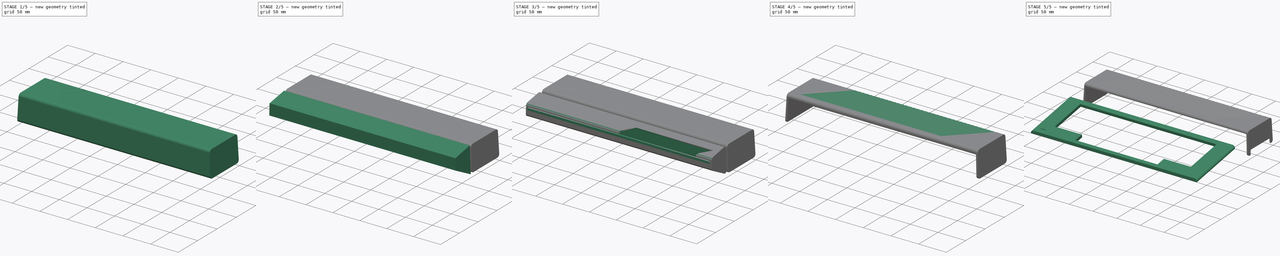
[diagram: build sequence overview — one tinted view per stage of 5, left to right]
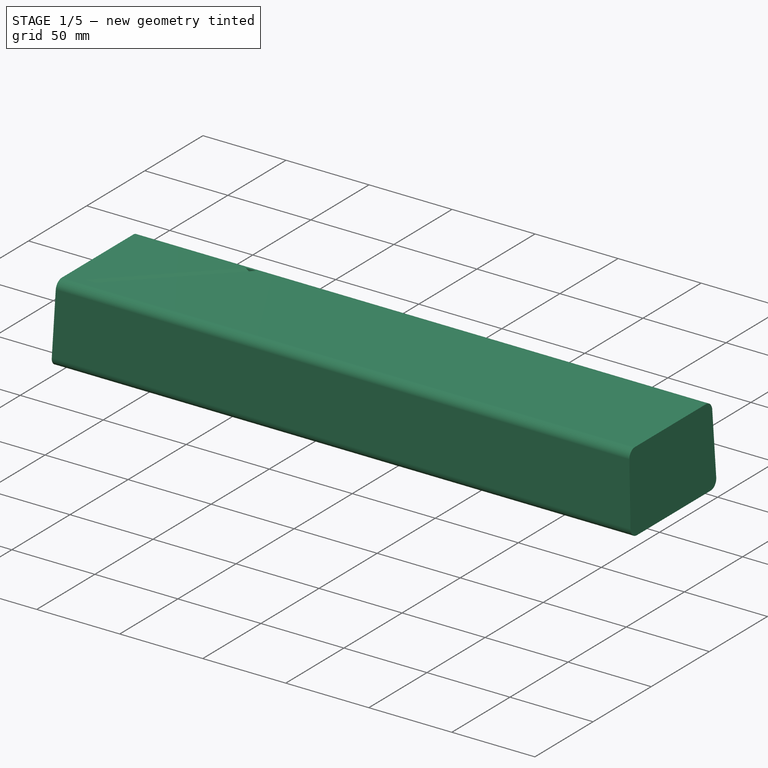
[diagram: stage 1 of 5 — iso view after this stage's code; geometry added in this stage tinted green]
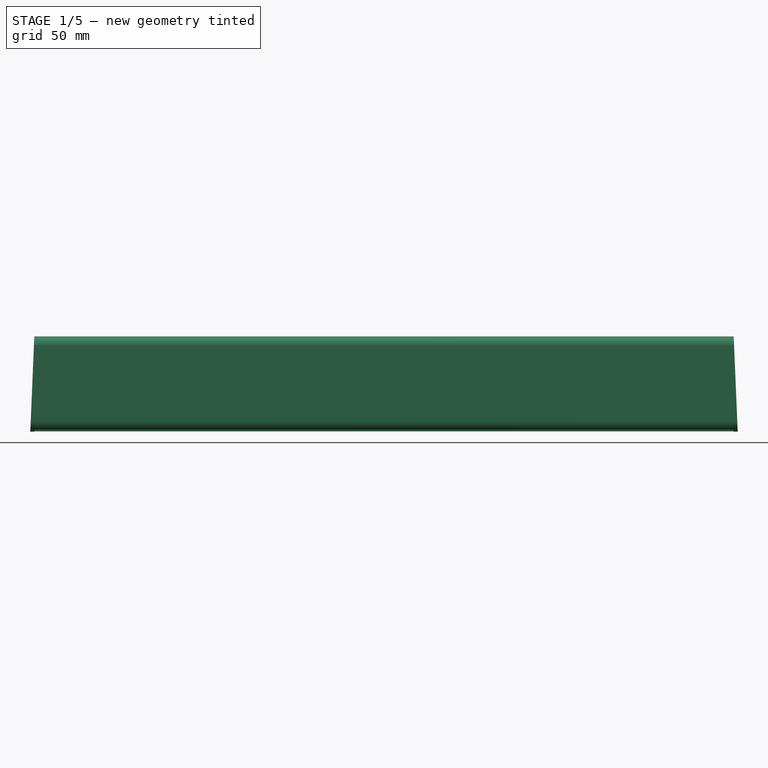
[diagram: stage 1 of 5 — front view after this stage's code; geometry added in this stage tinted green]
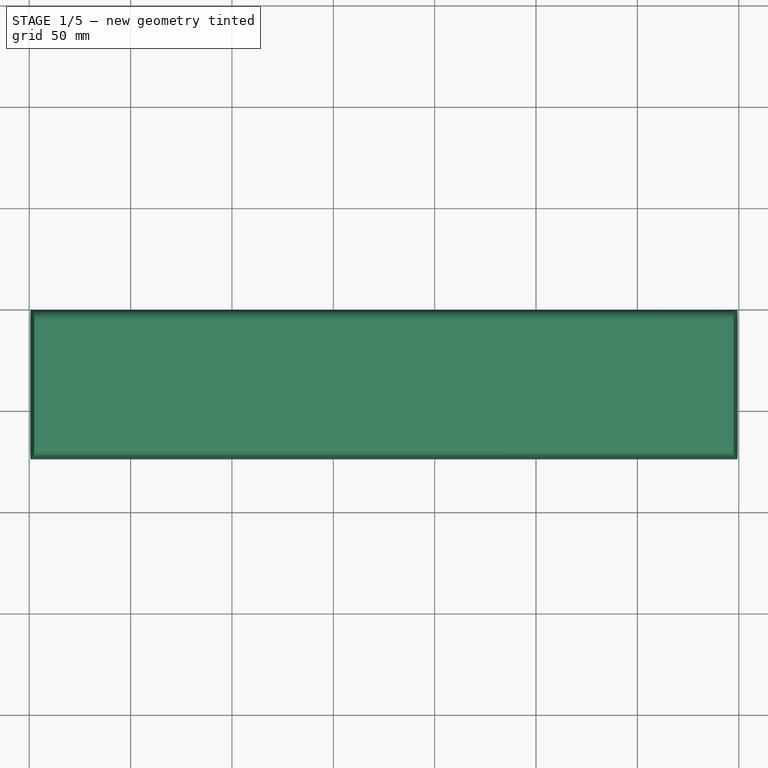
[diagram: stage 1 of 5 — top view after this stage's code; geometry added in this stage tinted green]
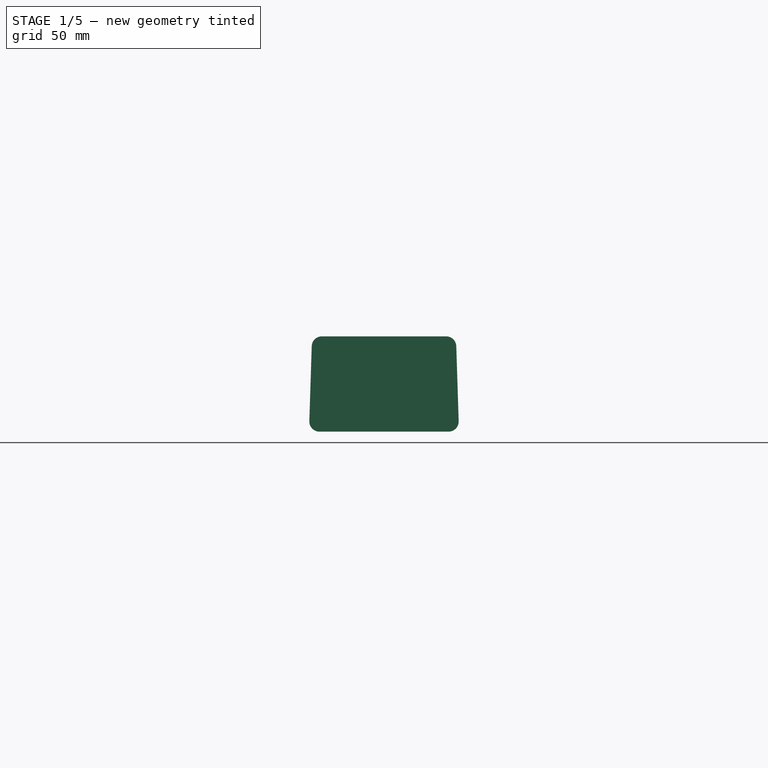
[diagram: stage 1 of 5 — right view after this stage's code; geometry added in this stage tinted green]
FCSTD DOCUMENT  (FreeCAD 1.1R20260414 (Git shallow))
Label: DecentCaseXE
License: Creative Commons Attribution 4.0
objects: Sketcher::SketchObject×32, PartDesign::Pocket×12, Part::DatumPlane×8, PartDesign::SubShapeBinder×7, PartDesign::Pad×5, PartDesign::SubtractiveLoft×5, Part::DatumLine×4, App::Point×3, PartDesign::Fillet×3, PartDesign::Body×3, Part::DatumPoint×2, App::VarSet×1, PartDesign::LinearPattern×1
note: 151 computed .brp shape members not serialized (recipe doc carries the construction recipe); baked Part::Feature solids carry a one-line shape summary decoded from their .brp

FEATURE [App::Point] Origin005  label="Origine003"
  Role = Origin
FEATURE [PartDesign::SubShapeBinder] Binder003  label="Back top master sketches binder"
  BindCopyOnChange = 0
  BindMode = 0
  ClaimChildren = false
  Context = -> Body002 [Binder003.]
  Fuse = false
  MakeFace = true
  OffsetFill = false
  OffsetIntersection = false
  OffsetJoinType = 0
  OffsetOpenResult = false
  PartialLoad = false
  Refine = true
  Relative = true
  Support = -> [Sketch,Sketch003]
  _Version = 2
FEATURE [Part::DatumPlane] DatumPlane002  label="Back side plane"
  AttachmentSupport = -> [Binder003]
  MapMode = 13
  Placement = pos=(1.96e-14,-24.6667,43.3333) rot=(0.57735,0.57735,0.57735;2.0944rad)
FEATURE [Sketcher::SketchObject] Sketch016
  ArcFitTolerance = 1e-06
  AttachmentSupport = -> [DatumPlane002]
  ExternalGeometry = -> [Binder003]
  ExternalTypes = [0,0,0,0]
  FullyConstrained = true
  MakeInternals = false
  MapMode = 5
  Placement = pos=(1.96e-14,-24.6667,43.3333) rot=(0.57735,0.57735,0.57735;2.0944rad)
  _ExternalGeoVersion = 1
  expr: Constraints[19] = <<Data>>.SideFillet
  sketch-geometry (8):
    g0: LineSegment StartX=-49.1687 StartY=-26.1738 StartZ=0 EndX=-47.9878 EndY=10.8262 EndZ=0
    g1: LineSegment StartX=-42.9904 StartY=15.6667 StartZ=0 EndX=18.3237 EndY=15.6667 EndZ=0
    g2: LineSegment StartX=23.3212 StartY=10.8262 StartZ=0 EndX=24.502 EndY=-26.1738 EndZ=0
    g3: LineSegment StartX=19.5045 StartY=-31.3333 StartZ=0 EndX=-44.1712 EndY=-31.3333 EndZ=0
    g4: ArcOfCircle CenterX=-42.9904 CenterY=10.6667 CenterZ=0 NormalX=0 NormalY=0 NormalZ=1 AngleXU=0 Radius=5 StartAngle=1.5708 EndAngle=3.10969
    g5: ArcOfCircle CenterX=18.3237 CenterY=10.6667 CenterZ=0 NormalX=0 NormalY=0 NormalZ=1 AngleXU=0 Radius=5 StartAngle=0.0319041 EndAngle=1.5708
    g6: ArcOfCircle CenterX=19.5045 CenterY=-26.3333 CenterZ=0 NormalX=0 NormalY=0 NormalZ=1 AngleXU=0 Radius=5 StartAngle=4.71239 EndAngle=6.31509
    g7: ArcOfCircle CenterX=-44.1712 CenterY=-26.3333 CenterZ=0 NormalX=0 NormalY=0 NormalZ=1 AngleXU=0 Radius=5 StartAngle=3.10969 EndAngle=4.71239
  constraints (20):
    c: PointOnObject(g0,g-5)
    c: PointOnObject(g1,g-3)
    c: PointOnObject(g1,g-3)
    c: PointOnObject(g2,g-6)
    c: PointOnObject(g3,g-4)
    c: PointOnObject(g3,g-4)
    c: PointOnObject(g2,g-6)
    c: PointOnObject(g0,g-5)
    c: Tangent(g7,g0) = 1.5708
    c: Tangent(g7,g3) = 1.5708
    c: Tangent(g6,g3) = 1.5708
    c: Tangent(g6,g2) = 1.5708
    c: Tangent(g5,g2) = 1.5708
    c: Tangent(g5,g1) = 1.5708
    c: Tangent(g4,g1) = 1.5708
    c: Tangent(g4,g0) = 1.5708
    c: Equal(g4,g5)
    c: Equal(g5,g6)
    c: Equal(g6,g7)
    c: Radius(g4) = 5
FEATURE [PartDesign::Pad] Pad004  label="Top back shape"
  Direction = (1,0,0)
  Length = 350
  Length2 = 10
  Placement = pos=(2.06e-14,-24.6667,43.3333) rot=(0.57735,0.57735,0.57735;2.0944rad)
  Profile = -> Sketch016
  ReferenceAxis = -> Sketch016 [N_Axis]
  Refine = true
  Reversed = true
  SideType = 0
  Suppressed = false
  Type = 0
  Type2 = 0
  expr: Length = <<Data>>.OuterWidth
FEATURE [PartDesign::SubShapeBinder] Binder004  label="Top back side draft sketch binder"
  BindCopyOnChange = 0
  BindMode = 0
  ClaimChildren = false
  Context = -> Body002 [Binder004.]
  Fuse = false
  MakeFace = true
  OffsetFill = false
  OffsetIntersection = false
  OffsetJoinType = 0
  OffsetOpenResult = false
  PartialLoad = false
  Refine = true
  Relative = true
  Support = -> [Sketch008]
  _Version = 2
FEATURE [PartDesign::Pocket] Pocket005  label="Top back side draft"
  BaseFeature = -> Pad004
  Direction = (0,-1,0)
  Length = 5
  Length2 = 5
  Placement = pos=(2.06e-14,-24.6667,43.3333) rot=(0.57735,0.57735,0.57735;2.0944rad)
  Profile = -> Binder004
  Refine = true
  SideType = 0
  Suppressed = false
  Type = 1
  Type2 = 0
FEATURE [Sketcher::SketchObject] Sketch017  label="Top back skin sketch 1"
  ArcFitTolerance = 1e-06
  AttachmentSupport = -> [Pocket005]
  ExternalGeometry = -> [Pocket005]
  ExternalTypes = [0,0,0,0]
  FullyConstrained = true
  MakeInternals = false
  MapMode = 5
  Placement = pos=(2.25e-14,-24.6667,12) rot=(0.707107,0.707107,0;3.14159rad)
  _ExternalGeoVersion = 1
  expr: Constraints[11] = <<Data>>.Walls
  expr: Constraints[8] = <<Data>>.Walls
  expr: Constraints[9] = <<Data>>.Walls
  sketch-geometry (4):
    g0: LineSegment StartX=-47.1687 StartY=-2.50847 StartZ=0 EndX=-47.1687 EndY=-347.492 EndZ=0
    g1: LineSegment StartX=-47.1687 StartY=-347.492 StartZ=0 EndX=20.502 EndY=-347.492 EndZ=0
    g2: LineSegment StartX=20.502 StartY=-347.492 StartZ=0 EndX=20.502 EndY=-2.50847 EndZ=0
    g3: LineSegment StartX=20.502 StartY=-2.50847 StartZ=0 EndX=-47.1687 EndY=-2.50847 EndZ=0
  constraints (12):
    c: Coincident(g0,g1)
    c: Coincident(g1,g2)
    c: Coincident(g2,g3)
    c: Coincident(g3,g0)
    c: Vertical(g0)
    c: Vertical(g2)
    c: Horizontal(g1)
    c: Horizontal(g3)
    c: DistanceY(g-4,g0) = 2
    c: DistanceX(g-5,g0) = 2
    c: DistanceX(g1,g-6) = 4
    c: DistanceY(g2,g-3) = 2
FEATURE [Sketcher::SketchObject] Sketch018  label="Top back skin sketch 2"
  ArcFitTolerance = 1e-06
  AttachmentOffset = pos=(0,0,-5) rot=(0,0,1;0rad)
  AttachmentSupport = -> [Pocket005]
  ExternalGeometry = -> [Binder003]
  ExternalTypes = [0,0]
  FullyConstrained = true
  MakeInternals = false
  MapMode = 5
  Placement = pos=(1.97e-14,-24.6667,54) rot=(0,0,-1;1.5708rad)
  _ExternalGeoVersion = 1
  expr: Constraints[11] = <<Data>>.Walls
  expr: Constraints[8] = <<Data>>.Walls
  expr: Constraints[9] = <<Data>>.Walls
  sketch-geometry (4):
    g0: LineSegment StartX=-19.1667 StartY=-4.5 StartZ=0 EndX=-19.1667 EndY=-345.5 EndZ=0
    g1: LineSegment StartX=-19.1667 StartY=-345.5 StartZ=0 EndX=45.8333 EndY=-345.5 EndZ=0
    g2: LineSegment StartX=45.8333 StartY=-345.5 StartZ=0 EndX=45.8333 EndY=-4.5 EndZ=0
    g3: LineSegment StartX=45.8333 StartY=-4.5 StartZ=0 EndX=-19.1667 EndY=-4.5 EndZ=0
  constraints (12):
    c: Coincident(g0,g1)
    c: Coincident(g1,g2)
    c: Coincident(g2,g3)
    c: Coincident(g3,g0)
    c: Vertical(g0)
    c: Vertical(g2)
    c: Horizontal(g1)
    c: Horizontal(g3)
    c: DistanceY(g-4,g0) = 2
    c: DistanceX(g1,g-4) = 2
    c: DistanceX(g-4,g0) = 4
    c: DistanceY(g0,g-3) = 2
FEATURE [PartDesign::SubtractiveLoft] SubtractiveLoft001  label="Top back skin"
  BaseFeature = -> Pocket005
  Closed = false
  Placement = pos=(2.06e-14,-24.6667,43.3333) rot=(0.57735,0.57735,0.57735;2.0944rad)
  Profile = -> Sketch017
  Refine = true
  Ruled = false
  Sections = -> [Sketch018]
  Suppressed = false
FEATURE [Part::DatumLine] DatumLine  label="Normal to vent corner"
  AttacherType = Attacher::AttachEngineLine
  AttachmentSupport = -> [SubtractiveLoft001,Binder003]
  MapMode = 46
  Placement = pos=(-337.5,-63,59) rot=(0,0,1;1.5708rad)
FEATURE [Part::DatumPlane] DatumPlane004  label="Vent front plane"
  AttachmentSupport = -> [DatumLine,Binder003]
  MapMode = 13
  Placement = pos=(-335.143,-63,59.3333) rot=(0,0.707107,0.707107;3.14159rad)
FEATURE [Part::DatumPoint] DatumPoint
  AttacherType = Attacher::AttachEnginePoint
  AttachmentSupport = -> [Binder003,SubtractiveLoft001]
  MapMode = 40
  Placement = pos=(-279.782,-6.34297,59) rot=(0,0,1;0rad)
FEATURE [Part::DatumLine] DatumLine001
  AttacherType = Attacher::AttachEngineLine
  AttachmentSupport = -> [SubtractiveLoft001,DatumPoint]
  MapMode = 46
  Placement = pos=(-279.782,-6.34297,59) rot=(0,0,1;1.5708rad)
FEATURE [Part::DatumPoint] DatumPoint001
  AttacherType = Attacher::AttachEnginePoint
  AttachmentSupport = -> [SubtractiveLoft001,Binder003]
  MapMode = 40
  Placement = pos=(-273.772,-6.34297,59) rot=(0,0,1;0rad)
FEATURE [Part::DatumPlane] DatumPlane003  label="Ventilation back plane"
  AttachmentSupport = -> [DatumPoint,DatumPoint001,DatumLine001]
  MapMode = 49
  Placement = pos=(-279.782,-6.34297,59) rot=(1,0,0;1.5708rad)
FEATURE [Sketcher::SketchObject] Sketch019  label="Ventilation groove sketch 1"
  ArcFitTolerance = 1e-06
  AttachmentSupport = -> [DatumPlane003]
  ExternalGeometry = -> [Binder003]
  ExternalTypes = [1,1,1,1]
  FullyConstrained = true
  MakeInternals = false
  MapMode = 5
  Placement = pos=(-279.782,-6.34297,59) rot=(1,0,0;1.5708rad)
  _ExternalGeoVersion = 1
  expr: Constraints[10] = href(.Constraints.GrooveWidth45) * cos(45)
  sketch-geometry (4):
    g0: LineSegment StartX=0 StartY=0 StartZ=0 EndX=4.59619 EndY=-3.25 EndZ=0
    g1: LineSegment StartX=4.59619 StartY=-3.25 StartZ=0 EndX=6.01041 EndY=-3.25 EndZ=0
    g2: LineSegment StartX=6.01041 StartY=-3.25 StartZ=0 EndX=6.01041 EndY=4.334e-13 EndZ=0
    g3: LineSegment StartX=6.01041 StartY=4.334e-13 StartZ=0 EndX=0 EndY=0 EndZ=0
  constraints (11):
    c: Coincident(g0,g-4)
    c: Coincident(g0,g1)
    c: Horizontal(g1)
    c: Coincident(g1,g2)
    c: Coincident(g2,g3)
    c: Coincident(g3,g0)
    c: Vertical(g2)
    c: Vertical(g0,g-5)
    c: Coincident(g-6,g2)
    c: DistanceX(g0,g-5) = 4.59619  'GrooveWidth45'
    c: DistanceY(g2,g2) = 3.25
FEATURE [Sketcher::SketchObject] Sketch020  label="Ventilation groove sketch 2"
  ArcFitTolerance = 1e-06
  AttachmentSupport = -> [DatumPlane004]
  ExternalGeometry = -> [Binder003,Sketch019]
  ExternalTypes = [1,1,1,1,0]
  FullyConstrained = true
  MakeInternals = false
  MapMode = 5
  Placement = pos=(-335.143,-63,59.3333) rot=(0,0.707107,0.707107;3.14159rad)
  _ExternalGeoVersion = 1
  sketch-geometry (4):
    g0: LineSegment StartX=1.29636 StartY=-0.333333 StartZ=0 EndX=-3.29983 EndY=-3.58333 EndZ=0
    g1: LineSegment StartX=-3.29983 StartY=-3.58333 StartZ=0 EndX=-4.71405 EndY=-3.58333 EndZ=0
    g2: LineSegment StartX=-4.71405 StartY=-3.58333 StartZ=0 EndX=-4.71405 EndY=-0.333333 EndZ=0
    g3: LineSegment StartX=-4.71405 StartY=-0.333333 StartZ=0 EndX=1.29636 EndY=-0.333333 EndZ=0
  constraints (10):
    c: Coincident(g0,g-5)
    c: Coincident(g0,g1)
    c: Horizontal(g1)
    c: Coincident(g1,g2)
    c: Coincident(g2,g-3)
    c: Coincident(g2,g3)
    c: Coincident(g3,g0)
    c: Equal(g-7,g2)
    c: Vertical(g2)
    c: Vertical(g0,g-4)
FEATURE [PartDesign::Fillet] Fillet002
  Base = -> SubtractiveLoft001 [Edge42,Edge38]
  BaseFeature = -> SubtractiveLoft001
  Placement = pos=(2.06e-14,-24.6667,43.3333) rot=(0.57735,0.57735,0.57735;2.0944rad)
  Radius = 3
  Refine = true
  SupportTransform = false
  Suppressed = false
  UseAllEdges = false
FEATURE [PartDesign::SubtractiveLoft] SubtractiveLoft002  label="Main groove"
  BaseFeature = -> Fillet002
  Closed = false
  Placement = pos=(2.06e-14,-24.6667,43.3333) rot=(0.57735,0.57735,0.57735;2.0944rad)
  Profile = -> Sketch019
  Refine = true
  Ruled = false
  Sections = -> [Sketch020]
  Suppressed = false
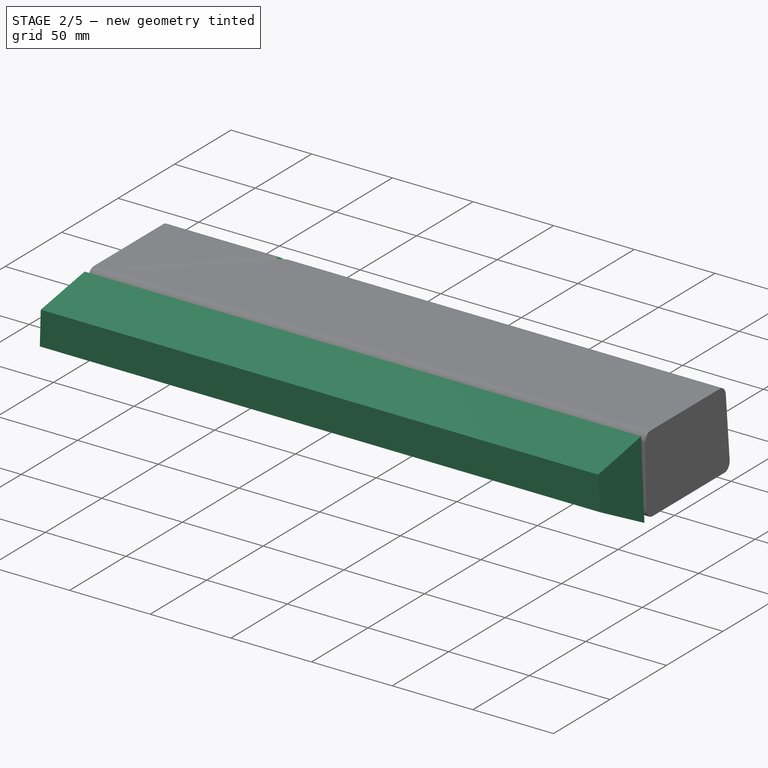
[diagram: stage 2 of 5 — iso view after this stage's code; geometry added in this stage tinted green]
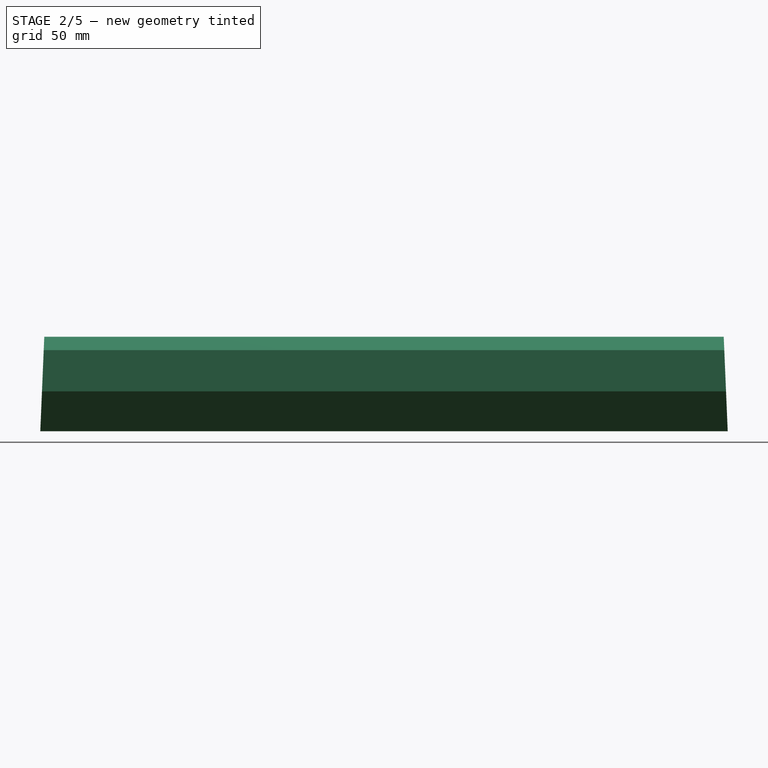
[diagram: stage 2 of 5 — front view after this stage's code; geometry added in this stage tinted green]
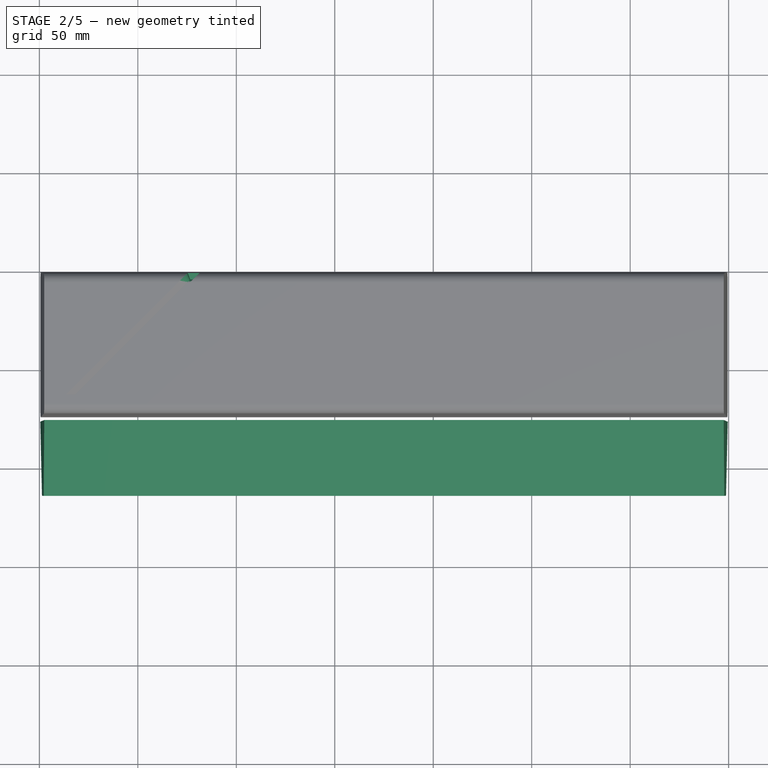
[diagram: stage 2 of 5 — top view after this stage's code; geometry added in this stage tinted green]
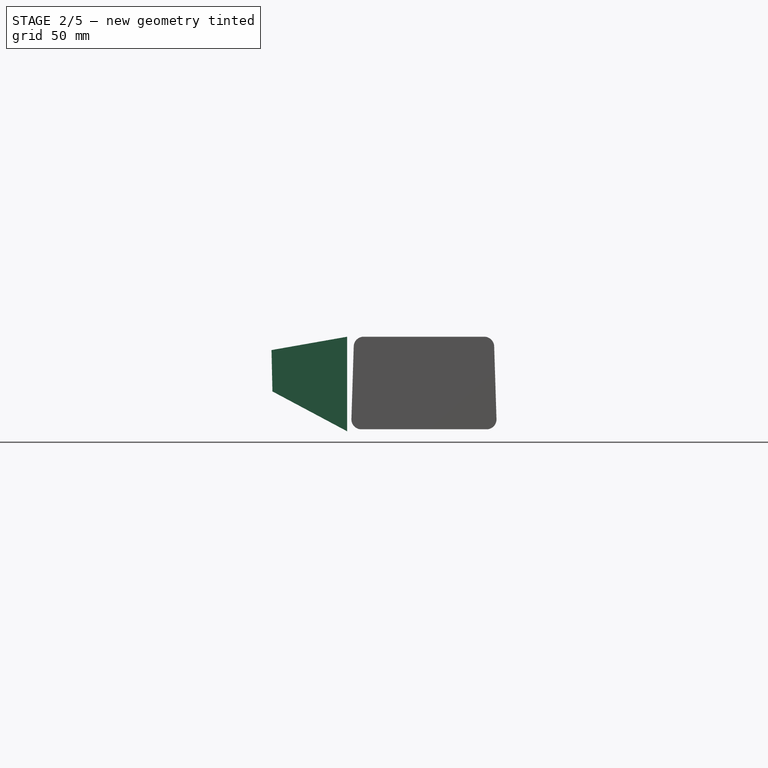
[diagram: stage 2 of 5 — right view after this stage's code; geometry added in this stage tinted green]
FEATURE [App::Point] Origin003  label="Origine002"
  Role = Origin
FEATURE [PartDesign::SubShapeBinder] Binder001  label="Middle master sketches binder"
  BindCopyOnChange = 0
  BindMode = 0
  ClaimChildren = false
  Context = -> Body001 [Binder001.]
  Fuse = false
  MakeFace = true
  OffsetFill = false
  OffsetIntersection = false
  OffsetJoinType = 0
  OffsetOpenResult = false
  PartialLoad = false
  Refine = true
  Relative = true
  Support = -> [Sketch,Sketch002]
  _Version = 2
FEATURE [Part::DatumPlane] DatumPlane001  label="Middle side plane"
  AttachmentSupport = -> [Binder001]
  MapMode = 13
  Placement = pos=(3.72e-14,-88.8025,40.7426) rot=(0.57735,0.57735,0.57735;2.0944rad)
FEATURE [Sketcher::SketchObject] Sketch007  label="Middle side sketch"
  ArcFitTolerance = 1e-06
  AttachmentSupport = -> [DatumPlane001]
  ExternalGeometry = -> [Binder001]
  ExternalTypes = [0,0,0,0]
  FullyConstrained = true
  MakeInternals = false
  MapMode = 5
  Placement = pos=(3.72e-14,-88.8025,40.7426) rot=(0.57735,0.57735,0.57735;2.0944rad)
  _ExternalGeoVersion = 1
FEATURE [PartDesign::Pad] Pad001  label="Middle shape"
  Direction = (1,0,0)
  Length = 350
  Length2 = 10
  Placement = pos=(4.85e-14,-88.8025,40.7426) rot=(0.57735,0.57735,0.57735;2.0944rad)
  Profile = -> Sketch007
  ReferenceAxis = -> Sketch007 [N_Axis]
  Refine = true
  Reversed = true
  SideType = 0
  Suppressed = false
  Type = 0
  Type2 = 0
  expr: Length = <<Data>>.OuterWidth
FEATURE [Sketcher::SketchObject] Sketch008  label="Side draft master sketch"
  ArcFitTolerance = 1e-06
  ExternalGeometry = -> [Sketch003]
  ExternalTypes = [0]
  FullyConstrained = true
  MakeInternals = false
  Placement = pos=(0,0,0) rot=(1,0,0;1.5708rad)
  _ExternalGeoVersion = 1
  sketch-geometry (6):
    g0: LineSegment StartX=-347.5 StartY=59 StartZ=0 EndX=-350 EndY=59 EndZ=0
    g1: LineSegment StartX=-350 StartY=59 StartZ=0 EndX=-350 EndY=0 EndZ=0
    g2: LineSegment StartX=-350 StartY=0 StartZ=0 EndX=-347.5 EndY=59 EndZ=0
    g3: LineSegment StartX=-2.5 StartY=59 StartZ=0 EndX=0 EndY=0 EndZ=0
    g4: LineSegment StartX=0 StartY=0 StartZ=0 EndX=0 EndY=59 EndZ=0
    g5: LineSegment StartX=0 StartY=59 StartZ=0 EndX=-2.5 EndY=59 EndZ=0
  constraints (15):
    c: Coincident(g-3,g0)
    c: Horizontal(g0)
    c: Coincident(g0,g1)
    c: PointOnObject(g1,g-1)
    c: Vertical(g1)
    c: Coincident(g1,g2)
    c: Coincident(g2,g0)
    c: Coincident(g-3,g3)
    c: Coincident(g3,g-1)
    c: Coincident(g3,g4)
    c: Coincident(g4,g5)
    c: Coincident(g5,g3)
    c: Horizontal(g5)
    c: Equal(g0,g5)
    c: Vertical(g4)
FEATURE [PartDesign::SubShapeBinder] Binder002  label="Side draft master sketch binder"
  BindCopyOnChange = 0
  BindMode = 0
  ClaimChildren = false
  Context = -> Body001 [Binder002.]
  Fuse = false
  MakeFace = true
  OffsetFill = false
  OffsetIntersection = false
  OffsetJoinType = 0
  OffsetOpenResult = false
  PartialLoad = false
  Refine = true
  Relative = true
  Support = -> [Sketch008]
  _Version = 2
FEATURE [PartDesign::Pocket] Pocket001  label="Side draft"
  BaseFeature = -> Pad001
  Direction = (0,-1,0)
  Length = 5
  Length2 = 5
  Placement = pos=(4.85e-14,-88.8025,40.7426) rot=(0.57735,0.57735,0.57735;2.0944rad)
  Profile = -> Binder002
  Refine = true
  SideType = 0
  Suppressed = false
  Type = 1
  Type2 = 0
FEATURE [Sketcher::SketchObject] Sketch021  label="Circular groove sketch 1"
  ArcFitTolerance = 1e-06
  AttachmentSupport = -> [SubtractiveLoft002]
  ExternalGeometry = -> [SubtractiveLoft002]
  ExternalTypes = [1,1,0]
  FullyConstrained = true
  MakeInternals = false
  MapMode = 5
  Placement = pos=(-146.048,121.381,43.3333) rot=(-0.862856,-0.357407,0.357407;1.71777rad)
  _ExternalGeoVersion = 1
  expr: Constraints[22] = href(.Constraints.d3 * .Constraints.d1 / .Constraints.d2)
  sketch-geometry (14):
    g0: ArcOfEllipse CenterX=-180.629 CenterY=-10.8262 CenterZ=0 NormalX=0 NormalY=0 NormalZ=1 MajorRadius=7.06747 MinorRadius=4.84051 AngleXU=-3.14159 StartAngle=1.5708 EndAngle=3.14159
    g1: LineSegment [constr] StartX=-187.697 StartY=-10.8262 StartZ=0 EndX=-173.562 EndY=-10.8262 EndZ=0
    g2: LineSegment [constr] StartX=-180.629 StartY=-15.6667 StartZ=0 EndX=-180.629 EndY=-5.98565 EndZ=0
    g3: GeomPoint [constr] X=-185.779 Y=-10.8262 Z=0
    g4: GeomPoint [constr] X=-175.48 Y=-10.8262 Z=0
    g5: ArcOfEllipse CenterX=-180.629 CenterY=-10.8262 CenterZ=0 NormalX=0 NormalY=0 NormalZ=1 MajorRadius=2.32225 MinorRadius=1.59051 AngleXU=-5.2e-15 StartAngle=4.71239 EndAngle=6.28319
    g6: LineSegment [constr] StartX=-178.307 StartY=-10.8262 StartZ=0 EndX=-182.951 EndY=-10.8262 EndZ=0
    g7: LineSegment [constr] StartX=-180.629 StartY=-9.23565 StartZ=0 EndX=-180.629 EndY=-12.4167 EndZ=0
    g8: GeomPoint [constr] X=-178.937 Y=-10.8262 Z=0
    g9: GeomPoint [constr] X=-182.321 Y=-10.8262 Z=0
    g10: LineSegment StartX=-178.307 StartY=-10.8262 StartZ=0 EndX=-173.562 EndY=-10.8262 EndZ=0
    g11: LineSegment StartX=-180.629 StartY=-12.4167 StartZ=0 EndX=-180.649 EndY=-12.4167 EndZ=0
    g12: LineSegment StartX=-180.649 StartY=-12.4167 StartZ=0 EndX=-180.649 EndY=-15.6667 EndZ=0
    g13: LineSegment StartX=-180.649 StartY=-15.6667 StartZ=0 EndX=-180.629 EndY=-15.6667 EndZ=0
  constraints (25):
    c: InternalAlignment(g1-g4 -> g0) x4
    c: Horizontal(g1)
    c: Coincident(g0,g-3)
    c: Coincident(g0,g-4)
    c: Vertical(g0,g0)
    c: Horizontal(g0,g0)
    c: InternalAlignment(g6-g9 -> g5) x4
    c: Vertical(g7)
    c: Horizontal(g5,g5)
    c: Coincident(g5,g-5)
    c: Coincident(g5,g0)
    c: Coincident(g10,g5)
    c: Coincident(g10,g0)
    c: DistanceY(g5,g0) = 1.59051  'd1'
    c: DistanceY(g0,g0) = 4.84051  'd2'
    c: DistanceX(g0,g0) = 7.06747  'd3'
    c: DistanceX(g0,g5) = 2.32225
    c: Coincident(g11,g5)
    c: PointOnObject(g11,g-5)
    c: Coincident(g11,g12)
    c: Vertical(g12)
    c: Coincident(g12,g13)
    c: Coincident(g13,g0)
    c: Horizontal(g13)
    c: DistanceX(g12,g0) = 0.02
FEATURE [Part::DatumPlane] DatumPlane005  label="Ventilation groove middle plane"
  AttachmentSupport = -> [Binder003,SubtractiveLoft002]
  MapMode = 45
  Placement = pos=(-303.002,-34.1591,57.4034) rot=(0.678168,-0.281739,0.678757;2.59498rad)
FEATURE [Sketcher::SketchObject] Sketch022  label="Circular groove sketch 2"
  ArcFitTolerance = 1e-06
  AttachmentSupport = -> [DatumPlane005]
  ExternalGeometry = -> [Sketch021,SubtractiveLoft002]
  ExternalTypes = [0,0,1,1]
  FullyConstrained = true
  MakeInternals = false
  MapMode = 5
  Placement = pos=(-303.002,-34.1591,57.4034) rot=(0.678168,-0.281739,0.678757;2.59498rad)
  _ExternalGeoVersion = 1
  expr: Constraints[34] = href(.Constraints.d)
  sketch-geometry (16):
    g0: LineSegment [constr] StartX=1.51424 StartY=-39.3411 StartZ=0 EndX=-3.32628 EndY=-39.3411 EndZ=0
    g1: LineSegment [constr] StartX=1.51424 StartY=-39.3411 StartZ=0 EndX=-1.73785 EndY=-39.3411 EndZ=0
    g2: ArcOfEllipse CenterX=-3.32628 CenterY=-39.3411 CenterZ=0 NormalX=0 NormalY=0 NormalZ=1 MajorRadius=7.06416 MinorRadius=4.84052 AngleXU=-1.5708 StartAngle=6.28013 EndAngle=7.85398
    g3: LineSegment [constr] StartX=-3.32628 StartY=-46.4053 StartZ=0 EndX=-3.32628 EndY=-32.277 EndZ=0
    g4: LineSegment [constr] StartX=1.51424 StartY=-39.3411 StartZ=0 EndX=-8.16679 EndY=-39.3411 EndZ=0
    g5: GeomPoint [constr] X=-3.32628 Y=-44.4862 Z=0
    g6: GeomPoint [constr] X=-3.32628 Y=-34.1961 Z=0
    g7: ArcOfEllipse CenterX=-3.32628 CenterY=-39.3411 CenterZ=0 NormalX=0 NormalY=0 NormalZ=1 MajorRadius=2.31893 MinorRadius=1.58843 AngleXU=-1.5708 StartAngle=-2.7e-15 EndAngle=1.5708
    g8: LineSegment [constr] StartX=-3.32628 StartY=-41.6601 StartZ=0 EndX=-3.32628 EndY=-37.0222 EndZ=0
    g9: LineSegment [constr] StartX=-1.73785 StartY=-39.3411 StartZ=0 EndX=-4.91471 EndY=-39.3411 EndZ=0
    g10: GeomPoint [constr] X=-3.32628 Y=-41.0306 Z=0
    g11: GeomPoint [constr] X=-3.32628 Y=-37.6517 Z=0
    g12: LineSegment StartX=-3.34107 StartY=-46.4053 StartZ=0 EndX=-3.32628 EndY=-41.6601 EndZ=0
    g13: LineSegment StartX=-1.73785 StartY=-39.3411 StartZ=0 EndX=-1.73785 EndY=-39.3211 EndZ=0
    g14: LineSegment StartX=-1.73785 StartY=-39.3211 StartZ=0 EndX=1.51424 EndY=-39.3211 EndZ=0
    g15: LineSegment StartX=1.51424 StartY=-39.3211 StartZ=0 EndX=1.51424 EndY=-39.3411 EndZ=0
  constraints (29):
    c: Coincident(g0,g-6)
    c: Horizontal(g0)
    c: PointOnObject(g0,g-3)
    c: PointOnObject(g1,g0)
    c: Vertical(g-4,g1)
    c: Coincident(g1,g-6)
    c: InternalAlignment(g3-g6 -> g2) x4
    c: Coincident(g2,g0)
    c: Coincident(g2,g0)
    c: PointOnObject(g2,g-3)
    c: Horizontal(g4)
    c: InternalAlignment(g8-g11 -> g7) x4
    c: Coincident(g7,g0)
    c: Coincident(g7,g1)
    c: PointOnObject(g7,g3)
    c: Horizontal(g9)
    c: Coincident(g12,g2)
    c: Coincident(g12,g7)
    c: Equal(g12,g-3)
    c: Coincident(g1,g13)
    c: Vertical(g13)
    c: Coincident(g13,g14)
    c: Horizontal(g14)
    c: Coincident(g14,g15)
    c: Coincident(g15,g0)
    c: Vertical(g15)
    c: DistanceY(g15,g15) = 0.02
    c: DistanceY(g-3,g-4) = 7.06412  'd'
    c: DistanceY(g2,g1) = 7.06412
FEATURE [Part::DatumLine] DatumLine002
  AttacherType = Attacher::AttachEngineLine
  AttachmentSupport = -> [SubtractiveLoft002]
  MapMode = 46
  Placement = pos=(-279.782,-6.34297,59) rot=(0,0,1;1.5708rad)
FEATURE [Part::DatumPlane] DatumPlane006  label="Ventilation groove left plane"
  AttachmentSupport = -> [DatumLine002,Binder003]
  MapMode = 13
  Placement = pos=(-278.345,-4.90542,59.3333) rot=(-0.281085,0.678598,0.678598;3.68962rad)
FEATURE [Sketcher::SketchObject] Sketch023  label="Circular groove sketch 3"
  ArcFitTolerance = 1e-06
  AttachmentSupport = -> [DatumPlane006]
  ExternalGeometry = -> [SubtractiveLoft002]
  ExternalTypes = [1,1]
  FullyConstrained = true
  MakeInternals = false
  MapMode = 5
  Placement = pos=(-278.345,-4.90542,59.3333) rot=(-0.281085,0.678598,0.678598;3.68962rad)
  _ExternalGeoVersion = 1
  sketch-geometry (15):
    g0: ArcOfEllipse CenterX=2.033 CenterY=-5.17384 CenterZ=0 NormalX=0 NormalY=0 NormalZ=1 MajorRadius=7.06747 MinorRadius=4.84051 AngleXU=0 StartAngle=1.5708 EndAngle=3.14159
    g1: LineSegment [constr] StartX=9.10047 StartY=-5.17384 StartZ=0 EndX=-5.03447 EndY=-5.17384 EndZ=0
    g2: LineSegment [constr] StartX=2.033 StartY=-0.333333 StartZ=0 EndX=2.033 EndY=-10.0143 EndZ=0
    g3: GeomPoint [constr] X=7.18262 Y=-5.17384 Z=0
    g4: GeomPoint [constr] X=-3.11662 Y=-5.17384 Z=0
    g5: ArcOfEllipse CenterX=2.033 CenterY=-5.17384 CenterZ=0 NormalX=0 NormalY=0 NormalZ=1 MajorRadius=8.06747 MinorRadius=5.84051 AngleXU=0 StartAngle=1.5708 EndAngle=3.14159
    g6: LineSegment [constr] StartX=10.1005 StartY=-5.17384 StartZ=0 EndX=-6.03447 EndY=-5.17384 EndZ=0
    g7: LineSegment [constr] StartX=2.033 StartY=0.666667 StartZ=0 EndX=2.033 EndY=-11.0143 EndZ=0
    g8: GeomPoint [constr] X=7.5983 Y=-5.17384 Z=0
    g9: GeomPoint [constr] X=-3.5323 Y=-5.17384 Z=0
    g10: LineSegment [constr] StartX=2.033 StartY=-0.333333 StartZ=0 EndX=2.033 EndY=0.666667 EndZ=0
    g11: LineSegment StartX=-5.03447 StartY=-5.17384 StartZ=0 EndX=-6.03447 EndY=-5.17384 EndZ=0
    g12: LineSegment StartX=2.033 StartY=0.666667 StartZ=0 EndX=2.233 EndY=0.666667 EndZ=0
    g13: LineSegment StartX=2.233 StartY=0.666667 StartZ=0 EndX=2.233 EndY=-0.333333 EndZ=0
    g14: LineSegment StartX=2.233 StartY=-0.333333 StartZ=0 EndX=2.033 EndY=-0.333333 EndZ=0
  constraints (25):
    c: InternalAlignment(g1-g4 -> g0) x4
    c: Vertical(g2)
    c: Coincident(g2,g-4)
    c: Coincident(g1,g-3)
    c: Vertical(g0,g0)
    c: Horizontal(g0,g0)
    c: InternalAlignment(g6-g9 -> g5) x4
    c: Coincident(g5,g0)
    c: PointOnObject(g0,g7)
    c: Vertical(g5,g0)
    c: Horizontal(g5,g0)
    c: Coincident(g10,g0)
    c: Coincident(g10,g5)
    c: Coincident(g11,g0)
    c: Coincident(g11,g5)
    c: Equal(g10,g11)
    c: DistanceY(g10,g10) = 1
    c: Coincident(g12,g5)
    c: Horizontal(g12)
    c: Coincident(g12,g13)
    c: Vertical(g13)
    c: Coincident(g13,g14)
    c: Coincident(g14,g0)
    c: Horizontal(g14)
    c: DistanceX(g12,g12) = 0.2
FEATURE [PartDesign::SubtractiveLoft] SubtractiveLoft003  label="Circular groove"
  BaseFeature = -> SubtractiveLoft002
  Closed = false
  Placement = pos=(2.06e-14,-24.6667,43.3333) rot=(0.57735,0.57735,0.57735;2.0944rad)
  Profile = -> Sketch021
  Refine = true
  Ruled = true
  Sections = -> [Sketch022,Sketch023]
  Suppressed = false
FEATURE [Part::DatumPlane] DatumPlane007  label="Back groove sketch plane"
  AttachmentSupport = -> [SubtractiveLoft003]
  MapMode = 45
  Placement = pos=(-272.046,-3.02217,54.1605) rot=(4e-05,0.000419,1;1.6949rad)
FEATURE [Sketcher::SketchObject] Sketch024
  ArcFitTolerance = 1e-06
  AttachmentSupport = -> [DatumPlane007]
  ExternalGeometry = -> [SubtractiveLoft003]
  ExternalTypes = [0,0,0,0]
  FullyConstrained = true
  MakeInternals = false
  MapMode = 5
  Placement = pos=(-272.046,-3.02217,54.1605) rot=(4e-05,0.000419,1;1.6949rad)
  _ExternalGeoVersion = 1
  sketch-geometry (4):
    g0: LineSegment StartX=-1.47857 StartY=1.69323 StartZ=0 EndX=2.00278 EndY=2.51015 EndZ=0
    g1: LineSegment StartX=2.00278 StartY=2.51015 StartZ=0 EndX=1.25877 EndY=-3.45403 EndZ=0
    g2: LineSegment StartX=1.25877 StartY=-3.45403 StartZ=0 EndX=-1.65545 EndY=0.290888 EndZ=0
    g3: LineSegment StartX=-1.65545 StartY=0.290888 StartZ=0 EndX=-1.47857 EndY=1.69323 EndZ=0
  constraints (8):
    c: Coincident(g0,g-4)
    c: Coincident(g0,g-3)
    c: Coincident(g0,g1)
    c: Coincident(g1,g-6)
    c: Coincident(g1,g2)
    c: Coincident(g2,g-5)
    c: Coincident(g2,g3)
    c: Coincident(g3,g0)
FEATURE [Part::DatumLine] DatumLine003
  AttacherType = Attacher::AttachEngineLine
  AttachmentSupport = -> [SubtractiveLoft003]
  MapMode = 24
  Placement = pos=(-268.774,-1.34552,54.1595) rot=(0.3826,0.923679,0.020834;3.12433rad)
FEATURE [PartDesign::Pocket] Pocket007  label="Back groove"
  BaseFeature = -> SubtractiveLoft003
  Direction = (-0.0318824,-0.0318824,0.998983)
  Length = 5
  Length2 = 0.05
  Placement = pos=(2.06e-14,-24.6667,43.3333) rot=(0.57735,0.57735,0.57735;2.0944rad)
  Profile = -> Sketch024
  ReferenceAxis = -> DatumLine003
  Refine = true
  Reversed = true
  SideType = 1
  Suppressed = false
  Type = 0
  Type2 = 0
FEATURE [PartDesign::Body] Body  label="Top keyboard"
  AllowCompound = false
  Group = -> [DatumPlane,Binder,Sketch005,Pad,Sketch006,Pocket,Binder005,Sketch027,Pocket008]
  Origin = -> Origin
  Tip = -> Pocket008
FEATURE [PartDesign::SubShapeBinder] Binder006  label="Top middle back binder"
  BindCopyOnChange = 0
  BindMode = 0
  ClaimChildren = false
  Context = -> Body002 [Binder006.]
  Fuse = false
  MakeFace = true
  OffsetFill = false
  OffsetIntersection = false
  OffsetJoinType = 0
  OffsetOpenResult = false
  PartialLoad = false
  Refine = true
  Relative = true
  Support = -> [Body001]
  _Version = 2
FEATURE [Sketcher::SketchObject] Sketch028
  ArcFitTolerance = 1e-06
  AttachmentSupport = -> [Pad004]
  ExternalGeometry = -> [Binder006]
  ExternalTypes = [1,1,1,1,1]
  FullyConstrained = true
  MakeInternals = false
  MapMode = 5
  Placement = pos=(2.06e-14,-72.9508,44.8743) rot=(0.571112,0.571112,-0.589629;2.07607rad)
  _ExternalGeoVersion = 1
  sketch-geometry (3):
    g0: LineSegment StartX=-6.25985 StartY=-344.5 StartZ=0 EndX=35.5546 EndY=-346.377 EndZ=0
    g1: LineSegment StartX=35.5546 StartY=-346.377 StartZ=0 EndX=35.5546 EndY=-3.62272 EndZ=0
    g2: LineSegment StartX=35.5546 StartY=-3.62272 StartZ=0 EndX=-6.25985 EndY=-5.5 EndZ=0
  constraints (8):
    c: Coincident(g0,g-4)
    c: Coincident(g0,g1)
    c: Vertical(g1)
    c: Coincident(g1,g2)
    c: Coincident(g2,g-7)
    c: PointOnObject(g1,g-7)
    c: PointOnObject(g0,g-3)
    c: DistanceX(g-3,g0) = 10
FEATURE [Sketcher::SketchObject] Sketch029
  ArcFitTolerance = 1e-06
  AttachmentSupport = -> [Pocket007]
  ExternalGeometry = -> [Pocket007]
  ExternalTypes = [0,0]
  FullyConstrained = true
  MakeInternals = false
  MapMode = 5
  Placement = pos=(-146.048,121.381,43.3333) rot=(-0.862856,-0.357407,0.357407;1.71777rad)
  _ExternalGeoVersion = 1
  sketch-geometry (8):
    g0: LineSegment StartX=-252.754 StartY=-12.4167 StartZ=0 EndX=-252.754 EndY=-13.9167 EndZ=0
    g1: LineSegment StartX=-252.754 StartY=-13.9167 StartZ=0 EndX=-223.202 EndY=-13.9167 EndZ=0
    g2: LineSegment StartX=-223.202 StartY=-13.9167 StartZ=0 EndX=-223.202 EndY=-12.4167 EndZ=0
    g3: LineSegment StartX=-223.202 StartY=-12.4167 StartZ=0 EndX=-252.754 EndY=-12.4167 EndZ=0
    g4: LineSegment StartX=-218.202 StartY=-12.4167 StartZ=0 EndX=-218.202 EndY=-13.9167 EndZ=0
    g5: LineSegment StartX=-218.202 StartY=-13.9167 StartZ=0 EndX=-188.649 EndY=-13.9167 EndZ=0
    g6: LineSegment StartX=-188.649 StartY=-13.9167 StartZ=0 EndX=-188.649 EndY=-12.4167 EndZ=0
    g7: LineSegment StartX=-188.649 StartY=-12.4167 StartZ=0 EndX=-218.202 EndY=-12.4167 EndZ=0
  constraints (24):
    c: Coincident(g0,g1)
    c: Coincident(g1,g2)
    c: Coincident(g2,g3)
    c: Coincident(g3,g0)
    c: Vertical(g0)
    c: Vertical(g2)
    c: Horizontal(g1)
    c: Horizontal(g3)
    c: Distance(g1,g3) = 1.5
    c: PointOnObject(g0,g-3)
    c: Coincident(g4,g5)
    c: Coincident(g5,g6)
    c: Coincident(g6,g7)
    c: Coincident(g7,g4)
    c: Vertical(g4)
    c: Vertical(g6)
    c: Horizontal(g5)
    c: Horizontal(g7)
    c: PointOnObject(g4,g-3)
    c: Horizontal(g1,g4)
    c: Equal(g3,g7)
    c: DistanceX(g2,g4) = 5
    c: DistanceX(g-3,g0) = 8
    c: DistanceX(g6,g-3) = 8
FEATURE [PartDesign::Pocket] Pocket010  label="Vents"
  BaseFeature = -> Pocket007
  Direction = (-0.82,0,0.58)
  Length = 5
  Length2 = 5
  Placement = pos=(2.06e-14,-24.6667,43.3333) rot=(0.57735,0.57735,0.57735;2.0944rad)
  Profile = -> Sketch029
  ReferenceAxis = -> Pocket007 [Edge70]
  Refine = true
  Reversed = true
  SideType = 0
  Suppressed = false
  Type = 0
  Type2 = 0
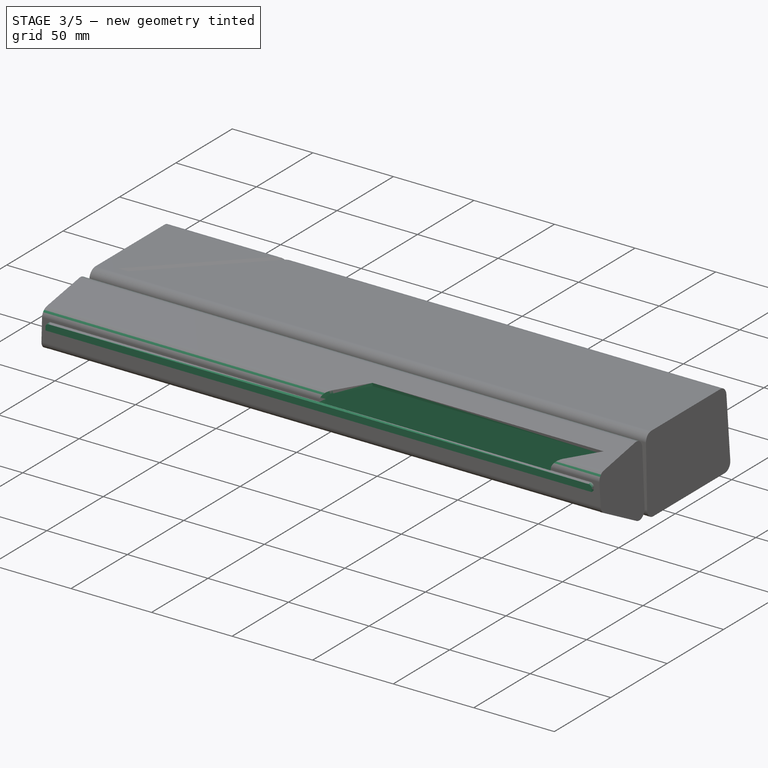
[diagram: stage 3 of 5 — iso view after this stage's code; geometry added in this stage tinted green]
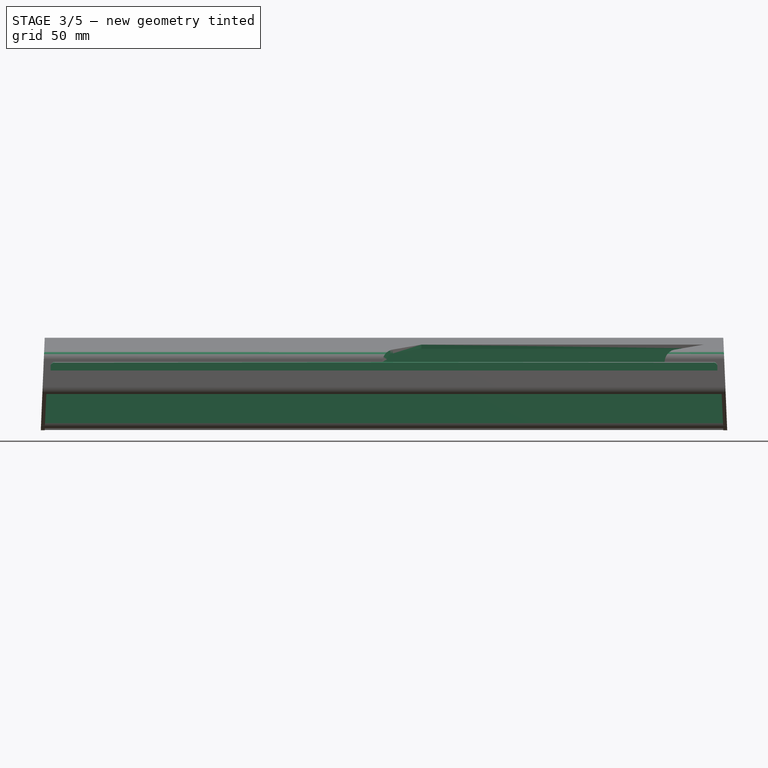
[diagram: stage 3 of 5 — front view after this stage's code; geometry added in this stage tinted green]
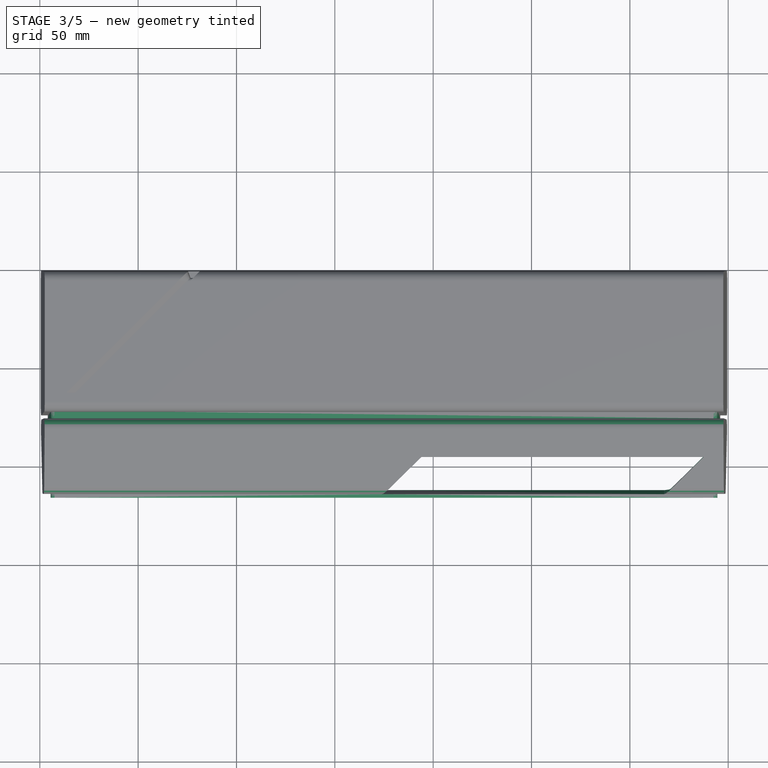
[diagram: stage 3 of 5 — top view after this stage's code; geometry added in this stage tinted green]
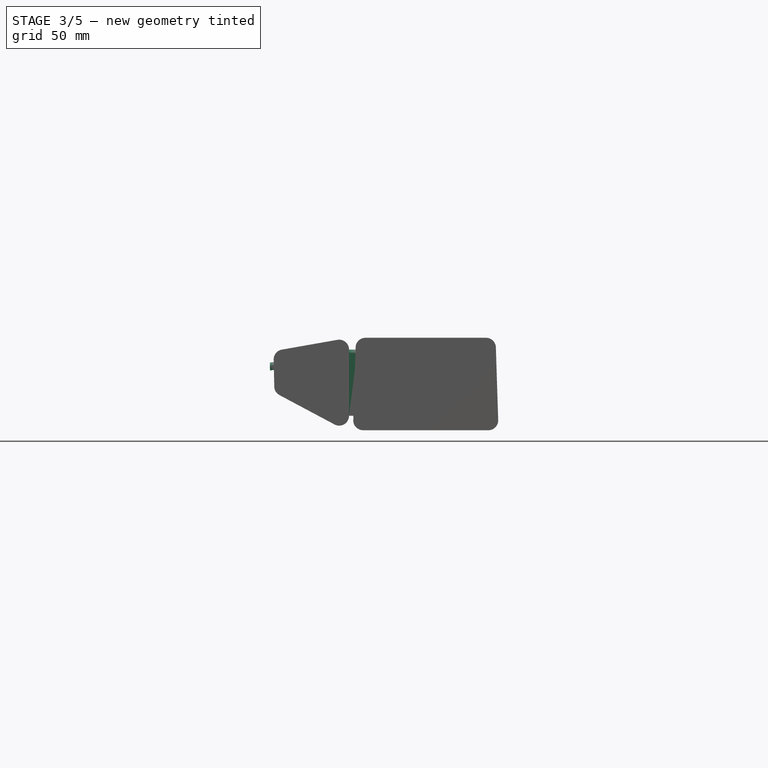
[diagram: stage 3 of 5 — right view after this stage's code; geometry added in this stage tinted green]
FEATURE [PartDesign::Fillet] Fillet  label="Middle top fillets"
  Base = -> Pocket001 [Edge2,Edge4,Edge12,Edge8]
  BaseFeature = -> Pocket001
  Placement = pos=(4.85e-14,-88.8025,40.7426) rot=(0.57735,0.57735,0.57735;2.0944rad)
  Radius = 5
  Refine = true
  SupportTransform = false
  Suppressed = false
  UseAllEdges = false
  expr: Radius = <<Data>>.SideFillet
FEATURE [Sketcher::SketchObject] Sketch009  label="Middle top thickness sketch 1"
  ArcFitTolerance = 1e-06
  AttachmentSupport = -> [Fillet]
  ExternalGeometry = -> [Pocket001]
  ExternalTypes = [0,0,0,0]
  FullyConstrained = true
  MakeInternals = false
  MapMode = 5
  Placement = pos=(4.95e-14,-98.3168,22.9005) rot=(0.696313,0.696313,-0.174055;2.79694rad)
  _ExternalGeoVersion = 1
  expr: Constraints[10] = <<Data>>.Walls
  expr: Constraints[11] = <<Data>>.Walls
  expr: Constraints[6] = <<Data>>.Walls
  expr: Constraints[7] = <<Data>>.Walls
  expr: Constraints[8] = <<Data>>.Walls
  expr: Constraints[9] = <<Data>>.Walls
  sketch-geometry (4):
    g0: LineSegment StartX=23.2915 StartY=-2.4661 StartZ=0 EndX=-15.7085 EndY=-3.32343 EndZ=0
    g1: LineSegment StartX=-15.7085 StartY=-3.32343 StartZ=0 EndX=-15.7085 EndY=-346.677 EndZ=0
    g2: LineSegment StartX=-15.7085 StartY=-346.677 StartZ=0 EndX=23.2915 EndY=-347.534 EndZ=0
    g3: LineSegment StartX=23.2915 StartY=-347.534 StartZ=0 EndX=23.2915 EndY=-2.4661 EndZ=0
  constraints (12):
    c: Coincident(g0,g1)
    c: Vertical(g1)
    c: Coincident(g1,g2)
    c: Coincident(g2,g3)
    c: Coincident(g3,g0)
    c: Vertical(g3)
    c: DistanceY(g0,g-5) = 2
    c: DistanceX(g-5,g0) = 2
    c: DistanceY(g0,g-6) = 2
    c: DistanceX(g0,g-6) = 2
    c: DistanceY(g-3,g1) = 2
    c: DistanceY(g-4,g2) = 2
FEATURE [Sketcher::SketchObject] Sketch010  label="Middle top thickness sketch 2"
  ArcFitTolerance = 1e-06
  AttachmentOffset = pos=(0,0,-2) rot=(0,0,1;0rad)
  AttachmentSupport = -> [Fillet]
  ExternalGeometry = -> [Pocket001]
  ExternalTypes = [0,0,0,0]
  FullyConstrained = true
  MakeInternals = false
  MapMode = 5
  Placement = pos=(4.77e-14,-91.1914,54.2905) rot=(0.086827,0.086827,-0.992433;1.57839rad)
  _ExternalGeoVersion = 1
  expr: .AttachmentOffset.Base.z = -<<Data>>.Walls
  expr: Constraints[10] = <<Data>>.Walls
  expr: Constraints[11] = <<Data>>.Walls
  expr: Constraints[6] = <<Data>>.Walls
  expr: Constraints[7] = <<Data>>.Walls
  expr: Constraints[8] = <<Data>>.Walls
  expr: Constraints[9] = <<Data>>.Walls
  sketch-geometry (4):
    g0: LineSegment StartX=-13.7784 StartY=-4.5 StartZ=0 EndX=21.2216 EndY=-4.21304 EndZ=0
    g1: LineSegment StartX=21.2216 StartY=-4.21304 StartZ=0 EndX=21.2216 EndY=-345.787 EndZ=0
    g2: LineSegment StartX=21.2216 StartY=-345.787 StartZ=0 EndX=-13.7784 EndY=-345.5 EndZ=0
    g3: LineSegment StartX=-13.7784 StartY=-345.5 StartZ=0 EndX=-13.7784 EndY=-4.5 EndZ=0
  constraints (12):
    c: Coincident(g0,g1)
    c: Vertical(g1)
    c: Coincident(g1,g2)
    c: Coincident(g2,g3)
    c: Coincident(g3,g0)
    c: Vertical(g3)
    c: DistanceY(g0,g-6) = 2
    c: DistanceX(g-6,g0) = 2
    c: DistanceY(g0,g-5) = 2
    c: DistanceX(g0,g-5) = 2
    c: DistanceY(g-3,g2) = 2
    c: DistanceY(g-4,g1) = 2
FEATURE [PartDesign::SubtractiveLoft] SubtractiveLoft  label="Top middle thickness"
  BaseFeature = -> Fillet
  Closed = false
  Placement = pos=(4.85e-14,-88.8025,40.7426) rot=(0.57735,0.57735,0.57735;2.0944rad)
  Profile = -> Sketch009
  Refine = true
  Ruled = false
  Sections = -> [Sketch010]
  Suppressed = false
FEATURE [PartDesign::Fillet] Fillet001  label="Inner fillet"
  Base = -> SubtractiveLoft [Edge38,Edge42]
  BaseFeature = -> SubtractiveLoft
  Placement = pos=(4.85e-14,-88.8025,40.7426) rot=(0.57735,0.57735,0.57735;2.0944rad)
  Radius = 3
  Refine = true
  SupportTransform = false
  Suppressed = false
  UseAllEdges = false
  expr: Radius = <<Data>>.SideFillet - <<Data>>.Walls
FEATURE [Sketcher::SketchObject] Sketch011
  ArcFitTolerance = 1e-06
  AttachmentSupport = -> [Fillet001]
  ExternalGeometry = -> [Binder001]
  ExternalTypes = [0,0,0]
  FullyConstrained = true
  MakeInternals = false
  MapMode = 5
  Placement = pos=(4.85e-14,-114.141,40.1813) rot=(0.581565,0.581565,-0.568826;2.10723rad)
  _ExternalGeoVersion = 1
  expr: Constraints[12] = <<Data>>.SmallFillet
  sketch-geometry (6):
    g0: LineSegment StartX=-4.51242 StartY=-5.5 StartZ=0 EndX=-2.5139 EndY=-5.5 EndZ=0
    g1: LineSegment StartX=-2.5139 StartY=-5.5 StartZ=0 EndX=-2.5139 EndY=-344.5 EndZ=0
    g2: LineSegment StartX=-2.5139 StartY=-344.5 StartZ=0 EndX=-4.51242 EndY=-344.5 EndZ=0
    g3: LineSegment StartX=-6.51242 StartY=-7.5 StartZ=0 EndX=-6.51242 EndY=-342.5 EndZ=0
    g4: ArcOfCircle CenterX=-4.51242 CenterY=-7.5 CenterZ=0 NormalX=0 NormalY=0 NormalZ=1 AngleXU=0 Radius=2 StartAngle=1.5708 EndAngle=3.14159
    g5: ArcOfCircle CenterX=-4.51242 CenterY=-342.5 CenterZ=0 NormalX=0 NormalY=0 NormalZ=1 AngleXU=0 Radius=2 StartAngle=3.14159 EndAngle=4.71239
  constraints (20):
    c: Horizontal(g0)
    c: Coincident(g0,g1)
    c: Vertical(g1)
    c: Coincident(g1,g2)
    c: Horizontal(g2)
    c: Vertical(g3)
    c: Vertical(g2,g0)
    c: Horizontal(g-4,g0)
    c: Coincident(g4,g0)
    c: Vertical(g0,g4)
    c: Coincident(g4,g3)
    c: Horizontal(g3,g4)
    c: Radius(g4) = 2
    c: Coincident(g5,g2)
    c: Coincident(g5,g3)
    c: Horizontal(g3,g5)
    c: Vertical(g5,g2)
    c: Horizontal(g-5,g2)
    c: DistanceX(g-3,g3) = 2
    c: Vertical(g0,g-3)
FEATURE [PartDesign::Pad] Pad002  label="Top middle to keyboard connection"
  BaseFeature = -> Fillet001
  Direction = (0,-0.984808,-0.173648)
  Length = 2
  Length2 = 10
  Placement = pos=(4.85e-14,-88.8025,40.7426) rot=(0.57735,0.57735,0.57735;2.0944rad)
  Profile = -> Sketch011
  ReferenceAxis = -> Binder001 [Edge13]
  Refine = true
  SideType = 0
  Suppressed = false
  Type = 0
  Type2 = 0
FEATURE [Sketcher::SketchObject] Sketch012  label="Top middle to back connection sketch"
  ArcFitTolerance = 1e-06
  AttachmentSupport = -> [Pad002]
  ExternalGeometry = -> [Pad002,Binder001]
  ExternalTypes = [0,0,0,0]
  FullyConstrained = true
  MakeInternals = false
  MapMode = 5
  Placement = pos=(4.85e-14,-76,40.7426) rot=(0.57735,0.57735,0.57735;4.18879rad)
  _ExternalGeoVersion = 1
  expr: Constraints[10] = <<Data>>.Walls
  expr: Constraints[12] = href(.Constraints.ConnectionDistanceFromSides)
  expr: Constraints[16] = <<Data>>.SmallFillet
  expr: Constraints[7] = href(.Constraints.ConnectionDistanceFromSides)
  sketch-geometry (10):
    g0: LineSegment StartX=10.3884 StartY=-5.5 StartZ=0 EndX=-21.4098 EndY=-4.07167 EndZ=0
    g1: LineSegment StartX=-21.4098 StartY=-345.928 StartZ=0 EndX=10.3884 EndY=-344.5 EndZ=0
    g2: LineSegment StartX=12.2987 StartY=-342.502 StartZ=0 EndX=12.2987 EndY=-7.49799 EndZ=0
    g3: ArcOfCircle CenterX=10.2987 CenterY=-342.502 CenterZ=0 NormalX=0 NormalY=0 NormalZ=1 AngleXU=0 Radius=2 StartAngle=4.75728 EndAngle=6.28319
    g4: LineSegment StartX=-21.4098 StartY=-345.928 StartZ=0 EndX=-21.4098 EndY=-343.928 EndZ=0
    g5: ArcOfCircle CenterX=10.2987 CenterY=-7.49799 CenterZ=0 NormalX=0 NormalY=0 NormalZ=1 AngleXU=0 Radius=2 StartAngle=0 EndAngle=1.52591
    g6: LineSegment StartX=-21.4098 StartY=-4.07167 StartZ=0 EndX=-21.4098 EndY=-6.07167 EndZ=0
    g7: LineSegment StartX=-21.4098 StartY=-6.07167 StartZ=0 EndX=10.2987 EndY=-7.49597 EndZ=0
    g8: LineSegment StartX=10.2987 StartY=-7.49597 StartZ=0 EndX=10.2987 EndY=-342.502 EndZ=0
    g9: LineSegment StartX=-21.4098 StartY=-343.928 StartZ=0 EndX=10.2987 EndY=-342.502 EndZ=0
  constraints (30):
    c: PointOnObject(g2,g-3)
    c: PointOnObject(g2,g-3)
    c: PointOnObject(g0,g-4)
    c: Coincident(g3,g2)
    c: Tangent(g3,g1) = -1.5708
    c: PointOnObject(g1,g-4)
    c: DistanceY(g-3,g-6) = 3.25249  'ConnectionDistanceFromSides'
    c: DistanceY(g-4,g1) = 3.25249
    c: Coincident(g4,g1)
    c: PointOnObject(g4,g-4)
    c: DistanceY(g4,g4) = 2
    c: Horizontal(g1,g-6)
    c: DistanceY(g0,g-4) = 3.25249
    c: Horizontal(g0,g-5)
    c: Tangent(g5,g0) = -1.5708
    c: Horizontal(g2,g5)
    c: Radius(g3) = 2
    c: Coincident(g0,g6)
    c: PointOnObject(g6,g-4)
    c: Coincident(g6,g7)
    c: Coincident(g7,g8)
    c: Coincident(g8,g3)
    c: Vertical(g8)
    c: Equal(g6,g4)
    c: Parallel(g7,g0)
    c: Coincident(g5,g2)
    c: Equal(g3,g5)
    c: Horizontal(g3,g2)
    c: Coincident(g9,g4)
    c: Coincident(g9,g3)
FEATURE [PartDesign::Pad] Pad003  label="Top middle to back connection"
  BaseFeature = -> Pad002
  Direction = (-1e-15,1,-1e-16)
  Length = 4
  Length2 = 10
  Placement = pos=(4.85e-14,-88.8025,40.7426) rot=(0.57735,0.57735,0.57735;2.0944rad)
  Profile = -> Sketch012
  ReferenceAxis = -> Sketch012 [N_Axis]
  Refine = true
  SideType = 0
  Suppressed = false
  Type = 0
  Type2 = 0
FEATURE [Sketcher::SketchObject] Sketch013  label="Console key sketch"
  ArcFitTolerance = 1e-06
  AttachmentSupport = -> [Pad003]
  ExternalGeometry = -> [Binder001]
  ExternalTypes = [0,0,0,0,0,0,0,0]
  FullyConstrained = true
  MakeInternals = false
  MapMode = 5
  Placement = pos=(4.77e-14,-91.5387,56.2601) rot=(0.086827,0.086827,-0.992433;1.57839rad)
  _ExternalGeoVersion = 1
FEATURE [PartDesign::Pocket] Pocket002  label="Console key pocket"
  BaseFeature = -> Pad003
  Direction = (-1.1e-15,0.173648,-0.984808)
  Length = 5
  Length2 = 5
  Placement = pos=(4.85e-14,-88.8025,40.7426) rot=(0.57735,0.57735,0.57735;2.0944rad)
  Profile = -> Sketch013
  ReferenceAxis = -> Sketch013 [N_Axis]
  Refine = true
  SideType = 0
  Suppressed = false
  Type = 1
  Type2 = 0
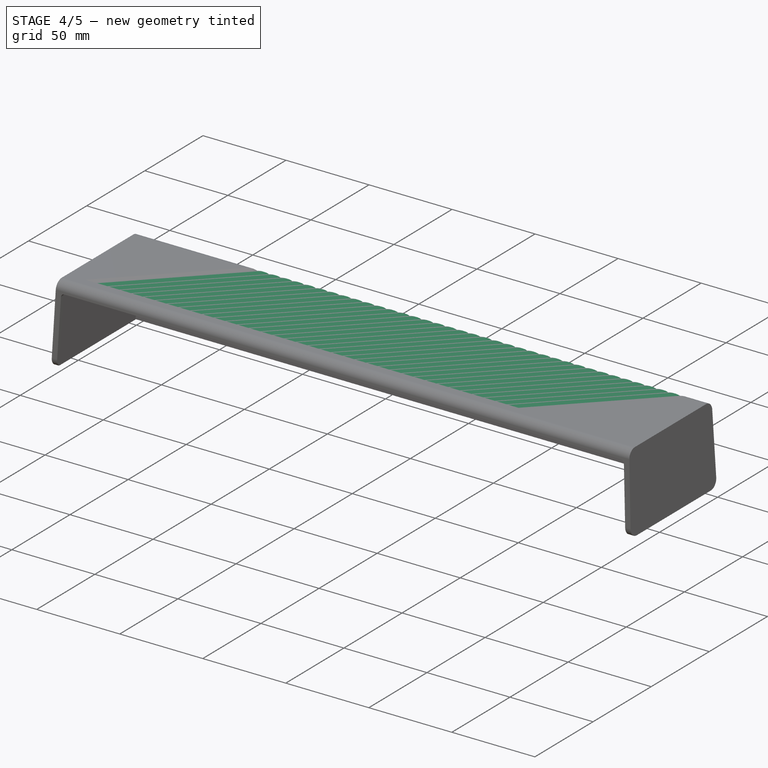
[diagram: stage 4 of 5 — iso view after this stage's code; geometry added in this stage tinted green]
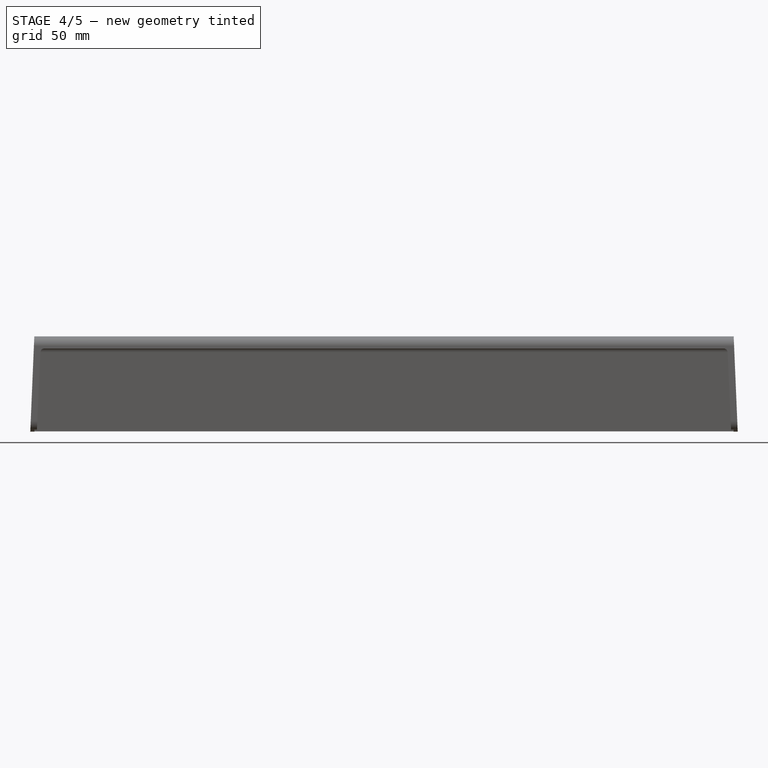
[diagram: stage 4 of 5 — front view after this stage's code; geometry added in this stage tinted green]
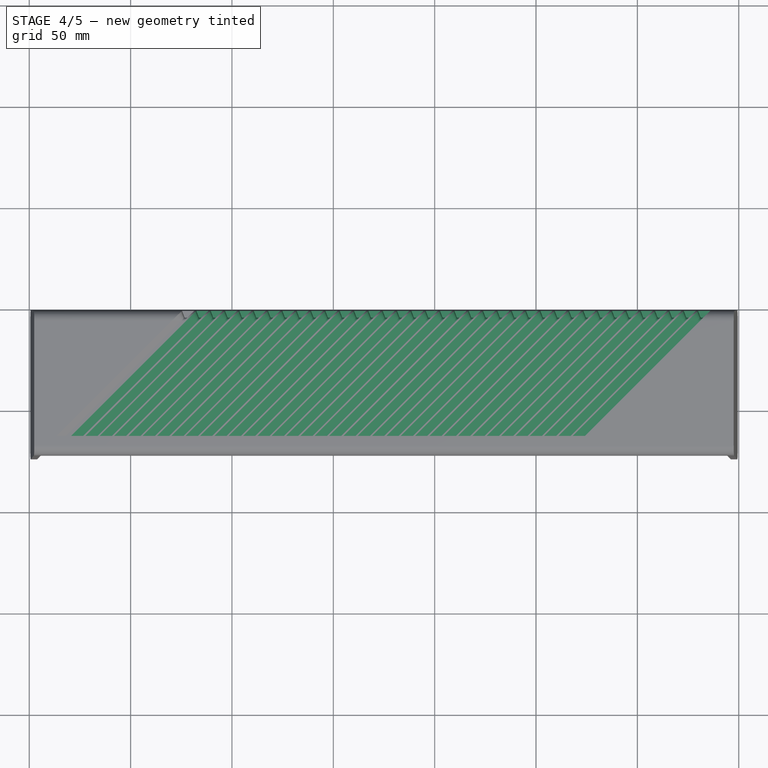
[diagram: stage 4 of 5 — top view after this stage's code; geometry added in this stage tinted green]
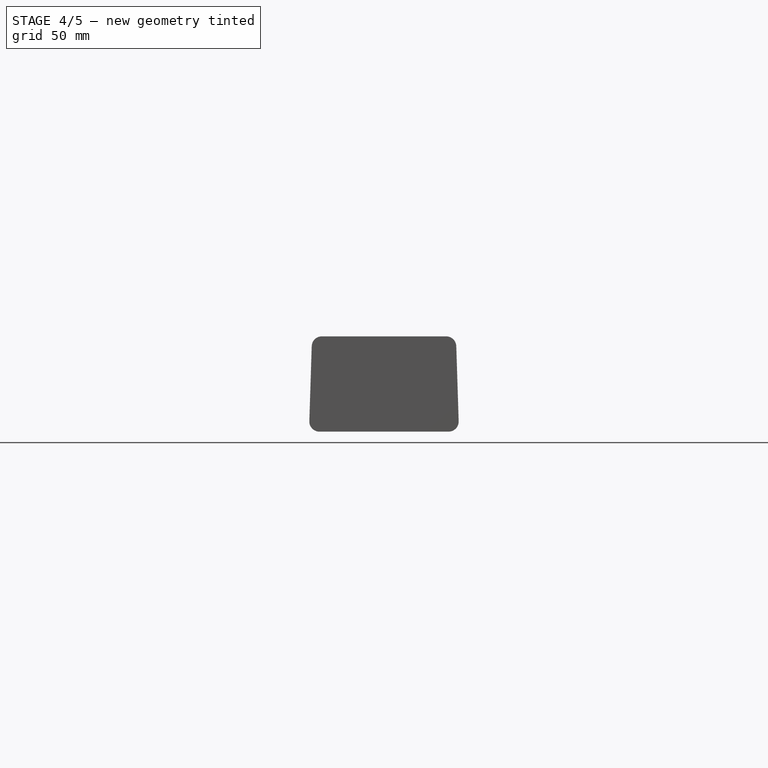
[diagram: stage 4 of 5 — right view after this stage's code; geometry added in this stage tinted green]
FEATURE [Sketcher::SketchObject] Sketch014  label="Badge sketch"
  ArcFitTolerance = 1e-06
  AttachmentSupport = -> [Pocket002]
  ExternalGeometry = -> [Binder001]
  ExternalTypes = [0,0,0,0]
  FullyConstrained = true
  MakeInternals = false
  MapMode = 5
  Placement = pos=(4.77e-14,-91.5387,56.2601) rot=(0.086827,0.086827,-0.992433;1.57839rad)
  _ExternalGeoVersion = 1
FEATURE [PartDesign::Pocket] Pocket003  label="Badge"
  BaseFeature = -> Pocket002
  Direction = (-1.4e-15,0.173648,-0.984808)
  Length = 1
  Length2 = 5
  Placement = pos=(4.85e-14,-88.8025,40.7426) rot=(0.57735,0.57735,0.57735;2.0944rad)
  Profile = -> Sketch014
  ReferenceAxis = -> Sketch014 [N_Axis]
  Refine = true
  SideType = 0
  Suppressed = false
  Type = 0
  Type2 = 0
FEATURE [Sketcher::SketchObject] Sketch015
  ArcFitTolerance = 1e-06
  AttachmentSupport = -> [Pocket003]
  ExternalGeometry = -> [Pocket003]
  ExternalTypes = [0,0,0]
  FullyConstrained = true
  MakeInternals = false
  MapMode = 5
  Placement = pos=(4.85e-14,-76,40.7426) rot=(0.57735,0.57735,0.57735;4.18879rad)
  _ExternalGeoVersion = 1
  sketch-geometry (4):
    g0: LineSegment StartX=10.2987 StartY=-342.502 StartZ=0 EndX=-25.2124 EndY=-344.099 EndZ=0
    g1: LineSegment StartX=-25.2124 StartY=-344.099 StartZ=0 EndX=-25.2124 EndY=-5.90087 EndZ=0
    g2: LineSegment StartX=-25.2124 StartY=-5.90087 StartZ=0 EndX=10.2987 EndY=-7.49597 EndZ=0
    g3: LineSegment StartX=10.2987 StartY=-7.49597 StartZ=0 EndX=10.2987 EndY=-342.502 EndZ=0
  constraints (10):
    c: Coincident(g-4,g0)
    c: PointOnObject(g0,g-5)
    c: Coincident(g0,g1)
    c: PointOnObject(g1,g-5)
    c: Coincident(g1,g2)
    c: Coincident(g2,g-3)
    c: Coincident(g2,g3)
    c: Coincident(g3,g0)
    c: PointOnObject(g0,g-4)
    c: PointOnObject(g1,g-3)
FEATURE [PartDesign::Pocket] Pocket004  label="Top middle back opening"
  BaseFeature = -> Pocket003
  Direction = (2.4e-15,-1,-1.7e-15)
  Length = 5
  Length2 = 5
  Placement = pos=(4.85e-14,-88.8025,40.7426) rot=(0.57735,0.57735,0.57735;2.0944rad)
  Profile = -> Sketch015
  ReferenceAxis = -> Sketch015 [N_Axis]
  Refine = true
  SideType = 0
  Suppressed = false
  Type = 3
  Type2 = 0
  UpToFace = -> Pocket003 [Face9]
FEATURE [Sketcher::SketchObject] Sketch025
  ArcFitTolerance = 1e-06
  AttachmentSupport = -> [Pocket002]
  ExternalGeometry = -> [Pocket002]
  ExternalTypes = [0,0,0]
  FullyConstrained = true
  MakeInternals = false
  MapMode = 5
  Placement = pos=(4.85e-14,-114.141,40.1813) rot=(0.581565,0.581565,-0.568826;2.10723rad)
  _ExternalGeoVersion = 1
  sketch-geometry (4):
    g0: LineSegment StartX=25.9361 StartY=-2.60531 StartZ=0 EndX=-2.5139 EndY=-3.88177 EndZ=0
    g1: LineSegment StartX=-2.5139 StartY=-3.88177 StartZ=0 EndX=-2.5139 EndY=-346.118 EndZ=0
    g2: LineSegment StartX=-2.5139 StartY=-346.118 StartZ=0 EndX=25.9361 EndY=-347.395 EndZ=0
    g3: LineSegment StartX=25.9361 StartY=-347.395 StartZ=0 EndX=25.9361 EndY=-2.60531 EndZ=0
  constraints (10):
    c: Coincident(g-3,g0)
    c: Coincident(g0,g1)
    c: Vertical(g1)
    c: Coincident(g1,g2)
    c: Coincident(g2,g-4)
    c: Coincident(g2,g3)
    c: Coincident(g3,g0)
    c: PointOnObject(g0,g-3)
    c: PointOnObject(g1,g-4)
    c: PointOnObject(g1,g-5)
FEATURE [Sketcher::SketchObject] Sketch026
  ArcFitTolerance = 1e-06
  AttachmentSupport = -> [SubtractiveLoft]
  ExternalGeometry = -> [Pocket004,Sketch025]
  ExternalTypes = [0,0,0,0]
  FullyConstrained = true
  MakeInternals = false
  MapMode = 45
  Placement = pos=(-175,-112.134,40.4943) rot=(0.578174,0.578174,0.5757;4.18631rad)
  _ExternalGeoVersion = 1
  sketch-geometry (4):
    g0: LineSegment StartX=-26.2486 StartY=172.379 StartZ=0 EndX=2.19145 EndY=171.134 EndZ=0
    g1: LineSegment StartX=2.19145 StartY=171.134 StartZ=0 EndX=2.19145 EndY=-171.134 EndZ=0
    g2: LineSegment StartX=2.19145 StartY=-171.134 StartZ=0 EndX=-26.2486 EndY=-172.379 EndZ=0
    g3: LineSegment StartX=-26.2486 StartY=-172.379 StartZ=0 EndX=-26.2486 EndY=172.379 EndZ=0
  constraints (12):
    c: Coincident(g0,g1)
    c: Coincident(g1,g2)
    c: Coincident(g2,g3)
    c: Coincident(g3,g0)
    c: PointOnObject(g2,g-6)
    c: PointOnObject(g2,g-4)
    c: PointOnObject(g1,g-4)
    c: PointOnObject(g1,g-5)
    c: PointOnObject(g0,g-3)
    c: PointOnObject(g0,g-3)
    c: PointOnObject(g0,g-6)
    c: PointOnObject(g0,g-5)
FEATURE [PartDesign::SubtractiveLoft] SubtractiveLoft004
  BaseFeature = -> Pocket004
  Closed = false
  Placement = pos=(4.85e-14,-88.8025,40.7426) rot=(0.57735,0.57735,0.57735;2.0944rad)
  Profile = -> Sketch025
  Refine = true
  Ruled = false
  Sections = -> [Sketch026]
  Suppressed = false
FEATURE [PartDesign::LinearPattern] LinearPattern
  BaseFeature = -> Pocket010
  Direction = -> Binder003 [Edge16]
  Direction2 = -> Sketch024 [V_Axis]
  Length = 254.56
  Length2 = 100
  Mode = 0
  Mode2 = 0
  Occurrences = 37
  Occurrences2 = 1
  Offset = 7.07111
  Offset2 = 100
  Originals = -> [Pocket007,SubtractiveLoft003,SubtractiveLoft002,Pocket010]
  Placement = pos=(2.06e-14,-24.6667,43.3333) rot=(0.57735,0.57735,0.57735;2.0944rad)
  Refine = true
  Reversed = true
  Reversed2 = false
  SpacingPattern = [9]
  SpacingPattern2 = [0]
  Spacings = [-1,-1,-1,-1,-1,-1,-1,-1,-1,-1,-1,-1,-1,-1,-1,-1,-1,-1,-1,-1,-1,-1,-1,-1,-1,-1,-1,-1,-1,-1,-1,-1,-1,-1,-1,-1]
  Suppressed = false
  TransformMode = 0
  expr: Length = 254.56 mm
  expr: Offset = <<Back top master sketch>>.Constraints.GrooveRepeatDistance
FEATURE [PartDesign::Pocket] Pocket009  label="Window from back to middle"
  BaseFeature = -> LinearPattern
  Direction = (2.1e-15,-1,-3e-16)
  Length = 5
  Length2 = 5
  Placement = pos=(2.06e-14,-24.6667,43.3333) rot=(0.57735,0.57735,0.57735;2.0944rad)
  Profile = -> Sketch028
  ReferenceAxis = -> Binder006 [Edge130]
  Refine = true
  Reversed = true
  SideType = 0
  Suppressed = false
  Type = 0
  Type2 = 0
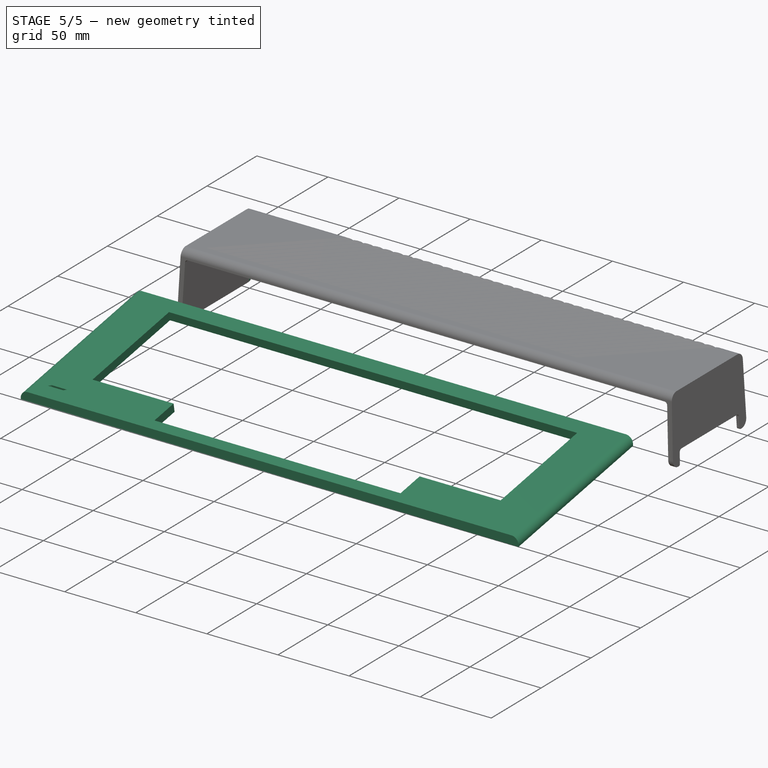
[diagram: stage 5 of 5 — iso view after this stage's code; geometry added in this stage tinted green]
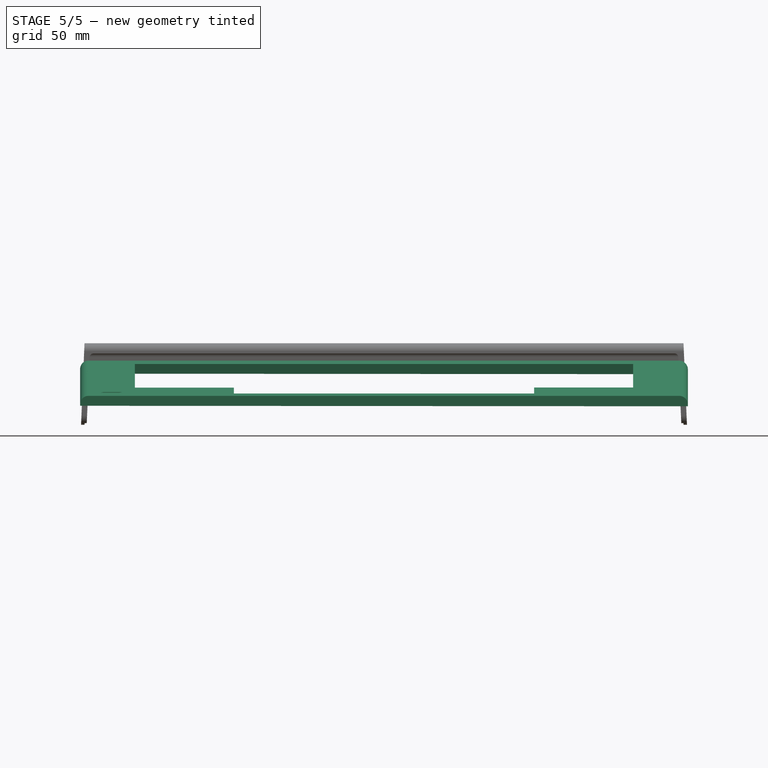
[diagram: stage 5 of 5 — front view after this stage's code; geometry added in this stage tinted green]
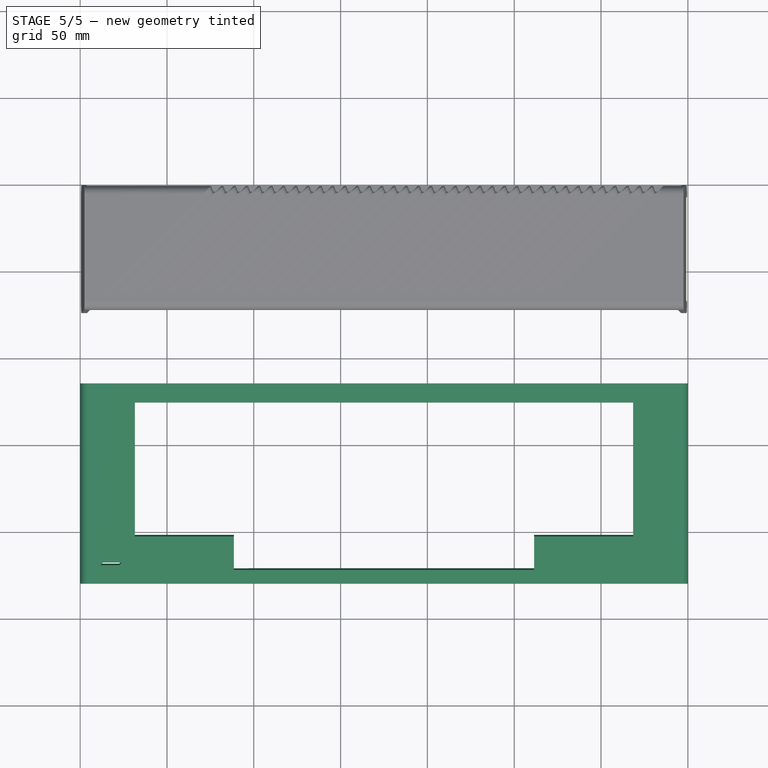
[diagram: stage 5 of 5 — top view after this stage's code; geometry added in this stage tinted green]
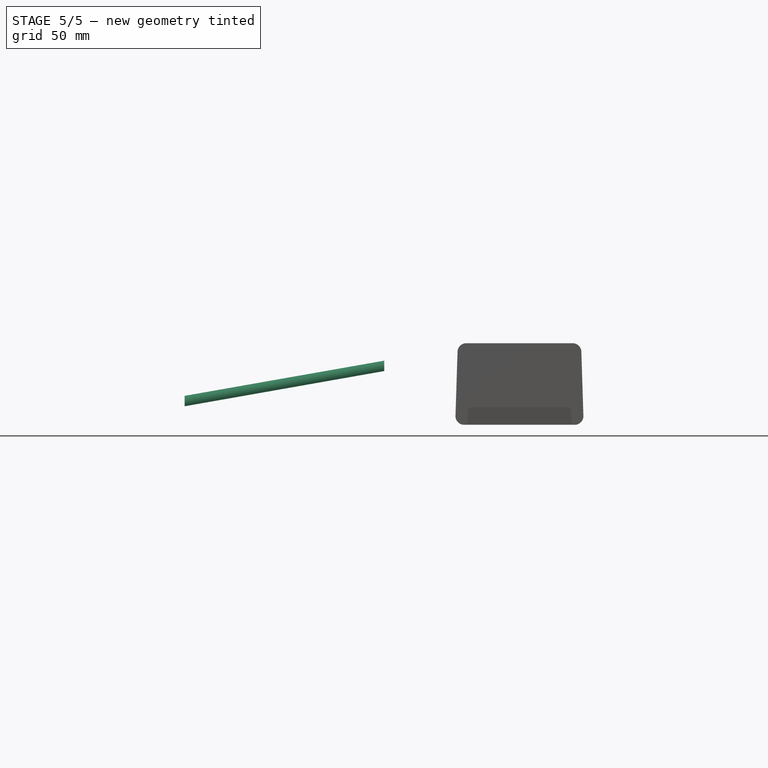
[diagram: stage 5 of 5 — right view after this stage's code; geometry added in this stage tinted green]
FEATURE [App::VarSet] VarSet  label="Data"
  KeyboardIncline = 10
  OuterWidth = 350
  SideFillet = 5
  SmallFillet = 2
  Walls = 2
FEATURE [Sketcher::SketchObject] Sketch  label="Side master sketch"
  ArcFitTolerance = 1e-06
  ExternalTypes = [0]
  FullyConstrained = true
  MakeInternals = false
  MapMode = 5
  Placement = pos=(0,0,0) rot=(0.57735,0.57735,0.57735;2.0944rad)
  _ExternalGeoVersion = 1
  expr: Constraints[33] = <<Data>>.KeyboardIncline
  sketch-geometry (14):
    g0: LineSegment StartX=0 StartY=12 StartZ=0 EndX=-1.5 EndY=59 EndZ=0
    g1: LineSegment StartX=-1.5 StartY=59 StartZ=0 EndX=-72.5 EndY=59 EndZ=0
    g2: LineSegment StartX=-72.5 StartY=59 StartZ=0 EndX=-74 EndY=12 EndZ=0
    g3: LineSegment StartX=-74 StartY=12 StartZ=0 EndX=0 EndY=12 EndZ=0
    g4: LineSegment [constr] StartX=-37 StartY=59 StartZ=0 EndX=-37 EndY=12 EndZ=0
    g5: LineSegment StartX=-76 StartY=11 StartZ=0 EndX=-76 EndY=59 EndZ=0
    g6: LineSegment StartX=-76 StartY=59 StartZ=0 EndX=-114.408 EndY=52.2277 EndZ=0
    g7: LineSegment StartX=-114.408 StartY=52.2277 StartZ=0 EndX=-113.942 EndY=31.2329 EndZ=0
    g8: LineSegment StartX=-113.942 StartY=31.2329 StartZ=0 EndX=-76 EndY=11 EndZ=0
    g9: LineSegment StartX=-229.86 StartY=28.6717 StartZ=0 EndX=-229.86 EndY=22.6717 EndZ=0
    g10: LineSegment StartX=-229.86 StartY=22.6717 StartZ=0 EndX=-116.608 EndY=42.6412 EndZ=0
    g11: LineSegment StartX=-116.608 StartY=42.6412 StartZ=0 EndX=-116.608 EndY=48.6412 EndZ=0
    g12: LineSegment StartX=-116.608 StartY=48.6412 StartZ=0 EndX=-229.86 EndY=28.6717 EndZ=0
    g13: LineSegment [constr] StartX=-116.608 StartY=48.6412 StartZ=0 EndX=-117.154 EndY=51.7434 EndZ=0
  constraints (41):
    c: Coincident(g0,g1)
    c: Horizontal(g1)
    c: Coincident(g1,g2)
    c: Coincident(g2,g3)
    c: Coincident(g3,g0)
    c: DistanceX(g1,g1) = 71
    c: DistanceY(g2,g1) = 47
    c: Horizontal(g3)
    c: DistanceY(g-1,g0) = 12
    c: DistanceX(g3,g3) = 74
    c: Symmetric(g1,g1,g4)
    c: Symmetric(g3,g3,g4)
    c: Vertical(g4)
    c: PointOnObject(g0,g-2)
    c: Coincident(g5,g6)
    c: Coincident(g6,g7)
    c: Coincident(g7,g8)
    c: Coincident(g8,g5)
    c: Distance(g6) = 39
    c: Distance(g7) = 21
    c: Distance(g8) = 43
    c: Distance(g5) = 48
    c: DistanceY(g-1,g5) = 11
    c: Vertical(g5)
    c: DistanceX(g5,g-1) = 76
    c: Vertical(g9)
    c: Coincident(g9,g10)
    c: Coincident(g10,g11)
    c: Vertical(g11)
    c: Coincident(g11,g12)
    c: Coincident(g12,g9)
    c: Parallel(g12,g10)
    c: Parallel(g12,g6)
    c: Angle(g-1,g10) = 0.174533
    c: DistanceY(g9,g9) = 6
    c: Distance(g12) = 115
    c: DistanceX(g11,g6) = 2.2
    c: Distance(g13) = 3.15
    c: Coincident(g13,g11)
    c: Perpendicular(g13,g12)
    c: PointOnObject(g13,g6)
FEATURE [Sketcher::SketchObject] Sketch001  label="Keyboard master sketch"
  ArcFitTolerance = 1e-06
  ExternalGeometry = -> [Sketch]
  ExternalTypes = [0,0,0]
  FullyConstrained = true
  MakeInternals = false
  Placement = pos=(-5.2e-15,-0.0345879,69.1962) rot=(1,0,0;0.174533rad)
  _ExternalGeoVersion = 1
  expr: .Placement.Rotation.Angle = <<Data>>.KeyboardIncline
  expr: Constraints[9] = <<Data>>.OuterWidth
  sketch-geometry (18):
    g0: LineSegment StartX=6.78e-14 StartY=-118.371 StartZ=0 EndX=-350 EndY=-118.371 EndZ=0
    g1: LineSegment StartX=-350 StartY=-118.371 StartZ=0 EndX=-350 EndY=-233.371 EndZ=0
    g2: LineSegment StartX=-350 StartY=-233.371 StartZ=0 EndX=1.137e-13 EndY=-233.371 EndZ=0
    g3: LineSegment StartX=1.137e-13 StartY=-233.371 StartZ=0 EndX=6.78e-14 EndY=-118.371 EndZ=0
    g4: LineSegment StartX=-318.5 StartY=-127.871 StartZ=0 EndX=-31.5 EndY=-127.871 EndZ=0
    g5: LineSegment StartX=-31.5 StartY=-127.871 StartZ=0 EndX=-31.5 EndY=-205.871 EndZ=0
    g6: LineSegment StartX=-31.5 StartY=-205.871 StartZ=0 EndX=-88.5 EndY=-205.871 EndZ=0
    g7: LineSegment StartX=-88.5 StartY=-205.871 StartZ=0 EndX=-88.5 EndY=-225.371 EndZ=0
    g8: LineSegment StartX=-88.5 StartY=-225.371 StartZ=0 EndX=-261.5 EndY=-225.371 EndZ=0
    g9: LineSegment StartX=-261.5 StartY=-225.371 StartZ=0 EndX=-261.5 EndY=-205.871 EndZ=0
    g10: LineSegment StartX=-261.5 StartY=-205.871 StartZ=0 EndX=-318.5 EndY=-205.871 EndZ=0
    g11: LineSegment StartX=-318.5 StartY=-205.871 StartZ=0 EndX=-318.5 EndY=-127.871 EndZ=0
    g12: GeomPoint [constr] X=-175 Y=-118.371 Z=0
    g13: GeomPoint [constr] X=-175 Y=-127.871 Z=0
    g14: LineSegment StartX=-338.25 StartY=-222.621 StartZ=0 EndX=-336.75 EndY=-221.121 EndZ=0
    g15: LineSegment StartX=-336.75 StartY=-221.121 StartZ=0 EndX=-326 EndY=-221.121 EndZ=0
    g16: LineSegment StartX=-326 StartY=-221.121 StartZ=0 EndX=-327.5 EndY=-222.621 EndZ=0
    g17: LineSegment StartX=-327.5 StartY=-222.621 StartZ=0 EndX=-338.25 EndY=-222.621 EndZ=0
  constraints (49):
    c: Coincident(g0,g1)
    c: Coincident(g1,g2)
    c: Coincident(g2,g3)
    c: Coincident(g3,g0)
    c: Horizontal(g0)
    c: Horizontal(g2)
    c: Vertical(g1)
    c: Coincident(g0,g-4)
    c: Coincident(g2,g-3)
    c: DistanceX(g2,g2) = 350
    c: Horizontal(g4)
    c: Coincident(g4,g5)
    c: Vertical(g5)
    c: Coincident(g5,g6)
    c: Horizontal(g6)
    c: Coincident(g6,g7)
    c: Coincident(g7,g8)
    c: Horizontal(g8)
    c: Coincident(g8,g9)
    c: Vertical(g9)
    c: Coincident(g9,g10)
    c: Horizontal(g10)
    c: Coincident(g10,g11)
    c: Coincident(g11,g4)
    c: Vertical(g11)
    c: DistanceX(g4,g4) = 287
    c: Vertical(g7)
    c: DistanceY(g5,g5) = 78
    c: Horizontal(g6,g9)
    c: DistanceX(g8,g8) = 173
    c: Equal(g10,g6)
    c: DistanceY(g8,g4) = 97.5
    c: Symmetric(g0,g0,g12)
    c: Symmetric(g4,g4,g13)
    c: Vertical(g13,g12)
    c: DistanceY(g4,g0) = 9.5
    c: Coincident(g14,g15)
    c: Horizontal(g15)
    c: Coincident(g15,g16)
    c: Coincident(g16,g17)
    c: Coincident(g17,g14)
    c: Horizontal(g17)
    c: Angle(g17,g14) = 0.785398
    c: DistanceY(g14,g14) = 1.5
    c: Parallel(g14,g16)
    c: DistanceX(g17,g17) = 10.75
    c: DistanceX(g15,g10) = 7.5
    c: DistanceY(g1,g14) = 10.75
    c: DistanceY(g3,g3) = 115  'KeyboardDepth'
FEATURE [Sketcher::SketchObject] Sketch002  label="Middle top master sketch"
  ArcFitTolerance = 1e-06
  ExternalGeometry = -> [Sketch,Sketch001]
  ExternalTypes = [0,0,0,0]
  FullyConstrained = true
  MakeInternals = false
  Placement = pos=(7e-16,-1.73811,72.0944) rot=(0.173648,0,0;0.174533rad)
  _ExternalGeoVersion = 1
  sketch-geometry (17):
    g0: LineSegment StartX=-347.5 StartY=-75.4075 StartZ=0 EndX=-347.5 EndY=-114.408 EndZ=0
    g1: LineSegment StartX=-347.5 StartY=-114.408 StartZ=0 EndX=-2.5 EndY=-114.408 EndZ=0
    g2: LineSegment StartX=-2.5 StartY=-114.408 StartZ=0 EndX=-2.5 EndY=-75.4075 EndZ=0
    g3: LineSegment StartX=-2.5 StartY=-75.4075 StartZ=0 EndX=-347.5 EndY=-75.4075 EndZ=0
    g4: GeomPoint [constr] X=-175 Y=-117.197 Z=0
    g5: GeomPoint [constr] X=-175 Y=-114.408 Z=0
    g6: LineSegment StartX=-344.5 StartY=-71.9607 StartZ=0 EndX=-344.5 EndY=-117.197 EndZ=0
    g7: LineSegment StartX=-5.5 StartY=-71.9607 StartZ=0 EndX=-5.5 EndY=-117.197 EndZ=0
    g8: GeomPoint [constr] X=-175 Y=-71.9607 Z=0
    g9: LineSegment StartX=-156 StartY=-95.4075 StartZ=0 EndX=-12.5 EndY=-95.4075 EndZ=0
    g10: LineSegment StartX=-12.5 StartY=-95.4075 StartZ=0 EndX=-32.5 EndY=-115.408 EndZ=0
    g11: LineSegment StartX=-32.5 StartY=-115.408 StartZ=0 EndX=-176 EndY=-115.408 EndZ=0
    g12: LineSegment StartX=-176 StartY=-115.408 StartZ=0 EndX=-156 EndY=-95.4075 EndZ=0
    g13: LineSegment StartX=-337.5 StartY=-95.4075 StartZ=0 EndX=-327 EndY=-84.9075 EndZ=0
    g14: LineSegment StartX=-327 StartY=-84.9075 StartZ=0 EndX=-175 EndY=-84.9075 EndZ=0
    g15: LineSegment StartX=-175 StartY=-84.9075 StartZ=0 EndX=-185.5 EndY=-95.4075 EndZ=0
    g16: LineSegment StartX=-185.5 StartY=-95.4075 StartZ=0 EndX=-337.5 EndY=-95.4075 EndZ=0
  constraints (47):
    c: Coincident(g0,g1)
    c: Coincident(g1,g2)
    c: Coincident(g2,g3)
    c: Coincident(g3,g0)
    c: Vertical(g0)
    c: Vertical(g2)
    c: Horizontal(g1)
    c: Horizontal(g3)
    c: Horizontal(g2,g-3)
    c: Horizontal(g1,g-3)
    c: DistanceX(g3,g3) = 345
    c: Symmetric(g-4,g-5,g4)
    c: Symmetric(g1,g1,g5)
    c: Vertical(g5,g4)
    c: Vertical(g6)
    c: Vertical(g7)
    c: DistanceX(g6,g7) = 339
    c: Symmetric(g6,g7,g8)
    c: Vertical(g8,g5)
    c: Horizontal(g6,g-4)
    c: Horizontal(g6,g7)
    c: Horizontal(g6,g7)
    c: Horizontal(g-6,g7)
    c: Horizontal(g9)
    c: Coincident(g9,g10)
    c: Coincident(g10,g11)
    c: Horizontal(g11)
    c: Coincident(g11,g12)
    c: Coincident(g12,g9)
    c: Angle(g11,g12) = 0.785398
    c: Parallel(g12,g10)
    c: DistanceX(g9,g9) = 143.5
    c: DistanceX(g9,g2) = 10
    c: DistanceY(g11,g9) = 20
    c: DistanceY(g9,g2) = 20
    c: Coincident(g13,g14)
    c: Horizontal(g14)
    c: Coincident(g14,g15)
    c: Coincident(g15,g16)
    c: Coincident(g16,g13)
    c: Horizontal(g16)
    c: Angle(g16,g13) = 0.785398
    c: Parallel(g13,g15)
    c: DistanceY(g15,g14) = 10.5
    c: DistanceX(g14,g14) = 152
    c: DistanceX(g0,g13) = 10
    c: DistanceY(g0,g13) = 19
FEATURE [Sketcher::SketchObject] Sketch003  label="Back top master sketch"
  ArcFitTolerance = 1e-06
  ExternalGeometry = -> [Sketch,Sketch002]
  ExternalTypes = [0,0]
  FullyConstrained = true
  MakeInternals = false
  Placement = pos=(0,0,59) rot=(0,0,1;0rad)
  _ExternalGeoVersion = 1
  sketch-geometry (12):
    g0: LineSegment StartX=-347.5 StartY=-72.5 StartZ=0 EndX=-2.5 EndY=-72.5 EndZ=0
    g1: LineSegment StartX=-2.5 StartY=-72.5 StartZ=0 EndX=-2.5 EndY=-1.5 EndZ=0
    g2: LineSegment StartX=-2.5 StartY=-1.5 StartZ=0 EndX=-347.5 EndY=-1.5 EndZ=0
    g3: LineSegment StartX=-347.5 StartY=-1.5 StartZ=0 EndX=-347.5 EndY=-72.5 EndZ=0
    g4: LineSegment StartX=-276 StartY=-1.5 StartZ=0 EndX=-337.5 EndY=-63 EndZ=0
    g5: LineSegment StartX=-337.5 StartY=-63 StartZ=0 EndX=-73.25 EndY=-63 EndZ=0
    g6: LineSegment StartX=-73.25 StartY=-63 StartZ=0 EndX=-11.75 EndY=-1.5 EndZ=0
    g7: LineSegment StartX=-11.75 StartY=-1.5 StartZ=0 EndX=-276 EndY=-1.5 EndZ=0
    g8: LineSegment StartX=-330.429 StartY=-63 StartZ=0 EndX=-268.929 EndY=-1.5 EndZ=0
    g9: LineSegment StartX=-276 StartY=-1.5 StartZ=0 EndX=-272.464 EndY=-5.03553 EndZ=0
    g10: LineSegment StartX=-331.843 StartY=-63 StartZ=0 EndX=-273.172 EndY=-4.32843 EndZ=0
    g11: LineSegment StartX=-336.439 StartY=-63 StartZ=0 EndX=-275.47 EndY=-2.03033 EndZ=0
  constraints (41):
    c: Coincident(g0,g1)
    c: Coincident(g1,g2)
    c: Coincident(g2,g3)
    c: Coincident(g3,g0)
    c: Horizontal(g0)
    c: Horizontal(g2)
    c: Vertical(g1)
    c: Vertical(g3)
    c: Horizontal(g1,g-3)
    c: Horizontal(g0,g-3)
    c: Vertical(g0,g-4)
    c: Vertical(g0,g-4)
    c: PointOnObject(g4,g2)
    c: Coincident(g4,g5)
    c: Horizontal(g5)
    c: Coincident(g5,g6)
    c: PointOnObject(g6,g2)
    c: Coincident(g6,g7)
    c: Coincident(g7,g4)
    c: Angle(g5,g4) = 0.785398
    c: Parallel(g4,g6)
    c: DistanceY(g0,g4) = 9.5
    c: DistanceX(g0,g4) = 10
    c: DistanceX(g6,g1) = 9.25
    c: PointOnObject(g8,g5)
    c: PointOnObject(g8,g2)
    c: Parallel(g4,g8)
    c: Coincident(g9,g4)
    c: PointOnObject(g9,g8)
    c: Perpendicular(g8,g9)
    c: Distance(g9) = 5
    c: PointOnObject(g10,g5)
    c: PointOnObject(g10,g9)
    c: Parallel(g8,g10)
    c: Distance(g10,g9) = 1
    c: PointOnObject(g11,g5)
    c: PointOnObject(g11,g9)
    c: Parallel(g4,g11)
    c: Distance(g4,g11) = 0.75
    c: DistanceX(g4,g8) = 7.07107  'GrooveRepeatDistance'
    c: DistanceX(g5,g5) = 264.25  'TotalVentWidth'
FEATURE [Sketcher::SketchObject] Sketch004  label="Keyboard print plate fitting test"
  ArcFitTolerance = 1e-06
  AttachmentOffset = pos=(0,0,0) rot=(1,0,0;0.610865rad)
  AttachmentSupport = -> [Sketch001]
  ExternalGeometry = -> [Sketch001]
  ExternalTypes = [0,0]
  FullyConstrained = true
  MakeInternals = false
  MapMode = 2
  Placement = pos=(-5.2e-15,-0.0345879,69.1962) rot=(1,0,0;0.785398rad)
  _ExternalGeoVersion = 1
  sketch-geometry (8):
    g0: LineSegment [constr] StartX=-350 StartY=-191.167 StartZ=0 EndX=5.68e-14 EndY=-191.167 EndZ=0
    g1: LineSegment [constr] StartX=5.68e-14 StartY=-191.167 StartZ=0 EndX=5.68e-14 EndY=-96.964 EndZ=0
    g2: LineSegment [constr] StartX=5.68e-14 StartY=-96.964 StartZ=0 EndX=-350 EndY=-96.964 EndZ=0
    g3: LineSegment [constr] StartX=-350 StartY=-96.964 StartZ=0 EndX=-350 EndY=-191.167 EndZ=0
    g4: LineSegment StartX=-396.718 StartY=-150.064 StartZ=0 EndX=-197.288 EndY=76.6109 EndZ=0
    g5: LineSegment StartX=-197.288 StartY=76.6109 StartZ=0 EndX=46.7177 EndY=-138.067 EndZ=0
    g6: LineSegment StartX=46.7177 StartY=-138.067 StartZ=0 EndX=-152.712 EndY=-364.741 EndZ=0
    g7: LineSegment StartX=-152.712 StartY=-364.741 StartZ=0 EndX=-396.718 EndY=-150.064 EndZ=0
  constraints (23):
    c: Coincident(g0,g1)
    c: Coincident(g1,g2)
    c: Coincident(g2,g3)
    c: Coincident(g3,g0)
    c: Horizontal(g0)
    c: Horizontal(g2)
    c: Vertical(g1)
    c: Vertical(g3)
    c: Coincident(g0,g-3)
    c: Coincident(g1,g-4)
    c: Coincident(g4,g5)
    c: Coincident(g5,g6)
    c: Coincident(g6,g7)
    c: Coincident(g7,g4)
    c: Perpendicular(g4,g5)
    c: Perpendicular(g6,g5)
    c: PointOnObject(g2,g4)
    c: PointOnObject(g0,g7)
    c: Perpendicular(g6,g7)
    c: PointOnObject(g0,g6)
    c: PointOnObject(g1,g5)
    c: Distance(g7) = 325  'PrintingPlateMinWidth'
    c: Distance(g6) = 301.917  'PrintingPlateMinDepth'
FEATURE [App::Point] Origin001  label="Origine"
  Role = Origin
FEATURE [Part::DatumPlane] DatumPlane  label="KeyboardFrontPlane"
  AttachmentSupport = -> [Sketch001,Sketch]
  MapMode = 45
  Placement = pos=(-172.051,-229.86,28.6211) rot=(-0.577668,-0.577191,-0.577191;2.09392rad)
FEATURE [PartDesign::SubShapeBinder] Binder  label="Keyboard master sketch binders"
  BindCopyOnChange = 0
  BindMode = 0
  ClaimChildren = false
  Context = -> Body [Binder.]
  Fuse = false
  MakeFace = true
  OffsetFill = false
  OffsetIntersection = false
  OffsetJoinType = 0
  OffsetOpenResult = false
  PartialLoad = false
  Refine = true
  Relative = true
  Support = -> [Sketch,Sketch001]
  _Version = 2
FEATURE [Sketcher::SketchObject] Sketch005  label="Top keyboard front sketch"
  ArcFitTolerance = 1e-06
  AttachmentSupport = -> [DatumPlane]
  ExternalGeometry = -> [Binder]
  ExternalTypes = [0,0,0]
  FullyConstrained = true
  MakeInternals = false
  MapMode = 5
  Placement = pos=(-172.051,-229.86,28.6211) rot=(-0.577668,-0.577191,-0.577191;2.09392rad)
  _ExternalGeoVersion = 1
  expr: Constraints[4] = <<Data>>.SideFillet
  sketch-geometry (6):
    g0: ArcOfCircle CenterX=-4.80748 CenterY=167.055 CenterZ=0 NormalX=0 NormalY=0 NormalZ=1 AngleXU=0 Radius=5 StartAngle=-2.7e-15 EndAngle=1.5708
    g1: LineSegment StartX=-4.80748 StartY=172.055 StartZ=0 EndX=-5.80748 EndY=172.055 EndZ=0
    g2: LineSegment StartX=-5.80748 StartY=172.055 StartZ=0 EndX=-5.80748 EndY=-177.949 EndZ=0
    g3: LineSegment StartX=-5.80748 StartY=-177.949 StartZ=0 EndX=-4.80748 EndY=-177.949 EndZ=0
    g4: ArcOfCircle CenterX=-4.80748 CenterY=-173.238 CenterZ=0 NormalX=0 NormalY=0 NormalZ=1 AngleXU=0 Radius=4.71122 StartAngle=4.71239 EndAngle=6.28319
    g5: LineSegment StartX=0.192516 StartY=167.055 StartZ=0 EndX=-0.0962593 EndY=-173.238 EndZ=0
  constraints (19):
    c: PointOnObject(g0,g-3)
    c: Vertical(g0,g0)
    c: Vertical(g0,g-5)
    c: Horizontal(g0,g0)
    c: Radius(g0) = 5
    c: Coincident(g2,g1)
    c: Vertical(g2)
    c: Horizontal(g2,g-4)
    c: Coincident(g3,g2)
    c: Horizontal(g3)
    c: Coincident(g4,g3)
    c: Vertical(g4,g3)
    c: Horizontal(g4,g4)
    c: Vertical(g-4,g4)
    c: Vertical(g3,g0)
    c: Coincident(g1,g-3)
    c: Coincident(g5,g0)
    c: Coincident(g5,g4)
    c: Coincident(g1,g0)
FEATURE [PartDesign::Pad] Pad  label="TopKeyboardShape"
  Direction = (4e-16,-0.984808,-0.173648)
  Length = 115
  Length2 = 10
  Placement = pos=(-172.051,-229.86,28.6211) rot=(-0.577668,-0.577191,-0.577191;2.09392rad)
  Profile = -> Sketch005
  ReferenceAxis = -> Binder [Edge12]
  Refine = true
  Reversed = true
  SideType = 0
  Suppressed = false
  Type = 0
  Type2 = 0
  expr: Length = <<Keyboard master sketch>>.Constraints.KeyboardDepth
FEATURE [Sketcher::SketchObject] Sketch006
  ArcFitTolerance = 1e-06
  AttachmentSupport = -> [Pad]
  ExternalGeometry = -> [Binder]
  ExternalTypes = [0,0,0,0,0,0,0,0,0,0,0,0]
  FullyConstrained = true
  MakeInternals = false
  MapMode = 5
  Placement = pos=(-172.051,-229.869,28.6703) rot=(1,-6.1e-05,-0.00083;0.174533rad)
  _ExternalGeoVersion = 1
FEATURE [PartDesign::Pocket] Pocket  label="Keyboard and LED windows"
  BaseFeature = -> Pad
  Direction = (2.31782e-05,0.173648,-0.984808)
  Length = 5
  Length2 = 5
  Placement = pos=(-172.051,-229.86,28.6211) rot=(-0.577668,-0.577191,-0.577191;2.09392rad)
  Profile = -> Sketch006
  ReferenceAxis = -> Sketch006 [N_Axis]
  Refine = true
  SideType = 0
  Suppressed = false
  Type = 1
  Type2 = 0
FEATURE [PartDesign::Body] Body001  label="Top middle"
  AllowCompound = false
  Group = -> [Binder001,DatumPlane001,Sketch007,Pad001,Binder002,Pocket001,Fillet,Sketch009,Sketch010,SubtractiveLoft,Fillet001,Sketch011,Pad002,Sketch012,Pad003,Sketch013,Pocket002,Sketch014,Pocket003,Sketch015,Pocket004,Sketch025,Sketch026,SubtractiveLoft004]
  Origin = -> Origin002
  Tip = -> SubtractiveLoft004
FEATURE [PartDesign::SubShapeBinder] Binder005  label="Top middle keyboard binder"
  BindCopyOnChange = 0
  BindMode = 0
  ClaimChildren = false
  Context = -> Body [Binder005.]
  Fuse = false
  MakeFace = true
  OffsetFill = false
  OffsetIntersection = false
  OffsetJoinType = 0
  OffsetOpenResult = false
  PartialLoad = false
  Refine = true
  Relative = true
  Support = -> [Body001]
  _Version = 2
FEATURE [Sketcher::SketchObject] Sketch027
  ArcFitTolerance = 1e-06
  AttachmentSupport = -> [Binder005]
  ExternalGeometry = -> [Binder005]
  ExternalTypes = [0,0,0,0,0,0]
  FullyConstrained = true
  MakeInternals = false
  MapMode = 5
  Placement = pos=(1.417e-13,-115.195,-2.55155) rot=(1,0,0;1.59294rad)
  _ExternalGeoVersion = 1
FEATURE [PartDesign::Pocket] Pocket008  label="Top middle connector pocket"
  BaseFeature = -> Pocket
  Direction = (0,0.98,0.17)
  Length = 5
  Length2 = 5
  Placement = pos=(-172.051,-229.86,28.6211) rot=(-0.577668,-0.577191,-0.577191;2.09392rad)
  Profile = -> Sketch027
  ReferenceAxis = -> Binder005 [Edge100]
  Refine = true
  SideType = 0
  Suppressed = false
  Type = 1
  Type2 = 0
FEATURE [Sketcher::SketchObject] Sketch030
  ArcFitTolerance = 1e-06
  AttachmentSupport = -> [Origin004]
  ExternalGeometry = -> [Pocket009]
  ExternalTypes = [0,0,0]
  FullyConstrained = true
  MakeInternals = false
  MapMode = 5
  Placement = pos=(0,0,0) rot=(0.57735,0.57735,0.57735;2.0944rad)
  _ExternalGeoVersion = 1
  sketch-geometry (10):
    g0: LineSegment StartX=-67 StartY=12.9681 StartZ=0 EndX=-66.7735 EndY=20.0638 EndZ=0
    g1: LineSegment StartX=-64.7746 StartY=22 StartZ=0 EndX=-9.22544 EndY=22 EndZ=0
    g2: LineSegment StartX=-7.22646 StartY=20.0638 StartZ=0 EndX=-7 EndY=12.9681 EndZ=0
    g3: ArcOfCircle CenterX=-64.7746 CenterY=20 CenterZ=0 NormalX=0 NormalY=0 NormalZ=1 AngleXU=0 Radius=2 StartAngle=1.5708 EndAngle=3.10969
    g4: ArcOfCircle CenterX=-9.22544 CenterY=20 CenterZ=0 NormalX=0 NormalY=0 NormalZ=1 AngleXU=0 Radius=2 StartAngle=0.0319041 EndAngle=1.5708
    g5: ArcOfCircle CenterX=-67.9995 CenterY=13 CenterZ=0 NormalX=0 NormalY=0 NormalZ=1 AngleXU=0 Radius=1 StartAngle=4.71239 EndAngle=6.25128
    g6: ArcOfCircle CenterX=-6.00051 CenterY=13 CenterZ=0 NormalX=0 NormalY=0 NormalZ=1 AngleXU=0 Radius=1 StartAngle=3.1735 EndAngle=4.71239
    g7: GeomPoint [constr] X=-37 Y=12 Z=0
    g8: GeomPoint [constr] X=-37 Y=22 Z=0
    g9: LineSegment StartX=-6.00051 StartY=12 StartZ=0 EndX=-67.9995 EndY=12 EndZ=0
  constraints (26):
    c: Horizontal(g1)
    c: Parallel(g0,g-4)
    c: Parallel(g-5,g2)
    c: Coincident(g3,g1)
    c: Coincident(g4,g1)
    c: Tangent(g3,g0) = 1.5708
    c: Vertical(g3,g1)
    c: Vertical(g4,g1)
    c: Tangent(g4,g2) = 1.5708
    c: Horizontal(g2,g0)
    c: Radius(g3) = 2
    c: Horizontal(g0,g2)
    c: PointOnObject(g5,g-3)
    c: PointOnObject(g6,g-3)
    c: Tangent(g5,g0) = -1.5708
    c: Vertical(g5,g5)
    c: Radius(g5) = 1
    c: Tangent(g6,g2) = -1.5708
    c: Vertical(g6,g6)
    c: DistanceX(g0,g2) = 60
    c: Symmetric(g-3,g-3,g7)
    c: Symmetric(g1,g1,g8)
    c: Vertical(g8,g7)
    c: DistanceY(g5,g1) = 10
    c: Coincident(g9,g6)
    c: Coincident(g9,g5)
FEATURE [PartDesign::Pocket] Pocket011  label="Joystick window"
  BaseFeature = -> Pocket009
  Direction = (-1,0,0)
  Length = 5
  Length2 = 5
  Placement = pos=(2.06e-14,-24.6667,43.3333) rot=(0.57735,0.57735,0.57735;2.0944rad)
  Profile = -> Sketch030
  ReferenceAxis = -> Sketch030 [N_Axis]
  Refine = true
  SideType = 0
  Suppressed = false
  Type = 3
  Type2 = 0
  UpToFace = -> Pocket009 [Face1]
FEATURE [Sketcher::SketchObject] Sketch031
  ArcFitTolerance = 1e-06
  AttachmentSupport = -> [Pocket011]
  ExternalGeometry = -> [Pocket011,Pocket010]
  ExternalTypes = [0,0,0,0]
  FullyConstrained = true
  MakeInternals = false
  MapMode = 45
  Placement = pos=(-175,-4.78663,31.5626) rot=(-0.571136,-0.571136,-0.589583;2.07614rad)
  _ExternalGeoVersion = 1
  sketch-geometry (4):
    g0: LineSegment StartX=-19.4725 StartY=-172.487 StartZ=0 EndX=-19.4725 EndY=172.487 EndZ=0
    g1: LineSegment StartX=-19.4725 StartY=172.487 StartZ=0 EndX=14.475 EndY=170.878 EndZ=0
    g2: LineSegment StartX=14.475 StartY=170.878 StartZ=0 EndX=14.475 EndY=-170.878 EndZ=0
    g3: LineSegment StartX=14.475 StartY=-170.878 StartZ=0 EndX=-19.4725 EndY=-172.487 EndZ=0
  constraints (10):
    c: Coincident(g0,g-4)
    c: Coincident(g0,g-3)
    c: Coincident(g0,g1)
    c: Coincident(g1,g2)
    c: Vertical(g2)
    c: Coincident(g2,g3)
    c: Coincident(g3,g0)
    c: PointOnObject(g2,g-4)
    c: PointOnObject(g1,g-3)
    c: DistanceX(g2,g-5) = 3
FEATURE [PartDesign::Pocket] Pocket012  label="Back opening"
  BaseFeature = -> Pocket011
  Direction = (-1e-16,-0.999495,-0.0317776)
  Length = 5
  Length2 = 5
  Placement = pos=(2.06e-14,-24.6667,43.3333) rot=(0.57735,0.57735,0.57735;2.0944rad)
  Profile = -> Sketch031
  ReferenceAxis = -> Sketch031 [N_Axis]
  Refine = true
  Reversed = true
  SideType = 0
  Suppressed = false
  Type = 3
  Type2 = 0
  UpToFace = -> Pocket011 [Face326]
FEATURE [PartDesign::Body] Body002  label="Top back"
  AllowCompound = false
  Group = -> [Binder003,DatumPlane002,Sketch016,Pad004,Binder004,Pocket005,Sketch017,Sketch018,SubtractiveLoft001,Fillet002,DatumPoint,DatumLine001,DatumPoint001,DatumPlane003,Sketch019,DatumLine,DatumPlane004,Sketch020,SubtractiveLoft002,Sketch021,DatumPlane005,Sketch022,DatumLine002,DatumPlane006,Sketch023,SubtractiveLoft003,DatumPlane007,Sketch024,DatumLine003,Pocket007,Sketch029,Pocket010,LinearPattern,+7 more]
  Origin = -> Origin004
  Tip = -> Pocket012
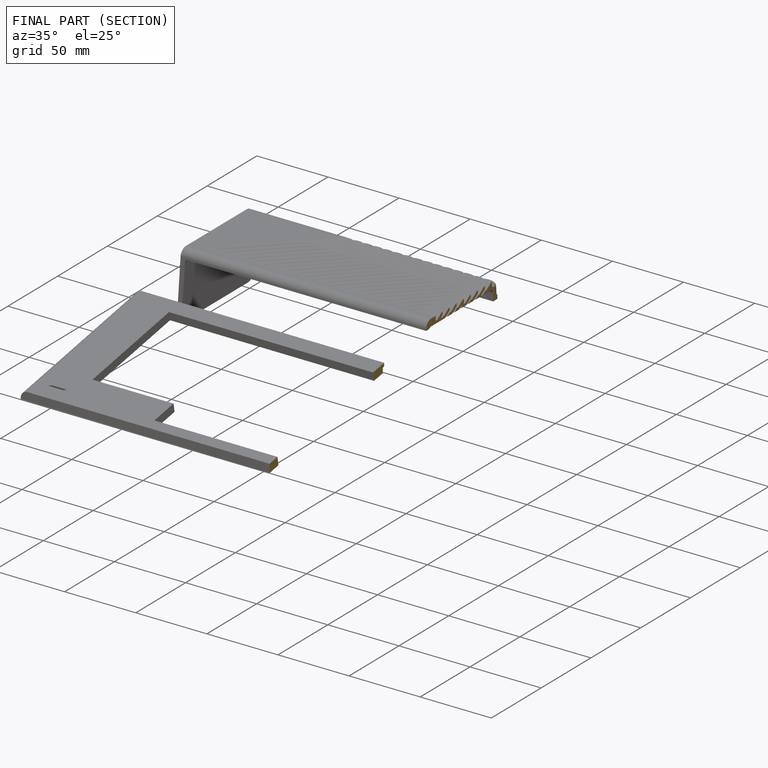
[diagram: finished part — half-section view (interior)]
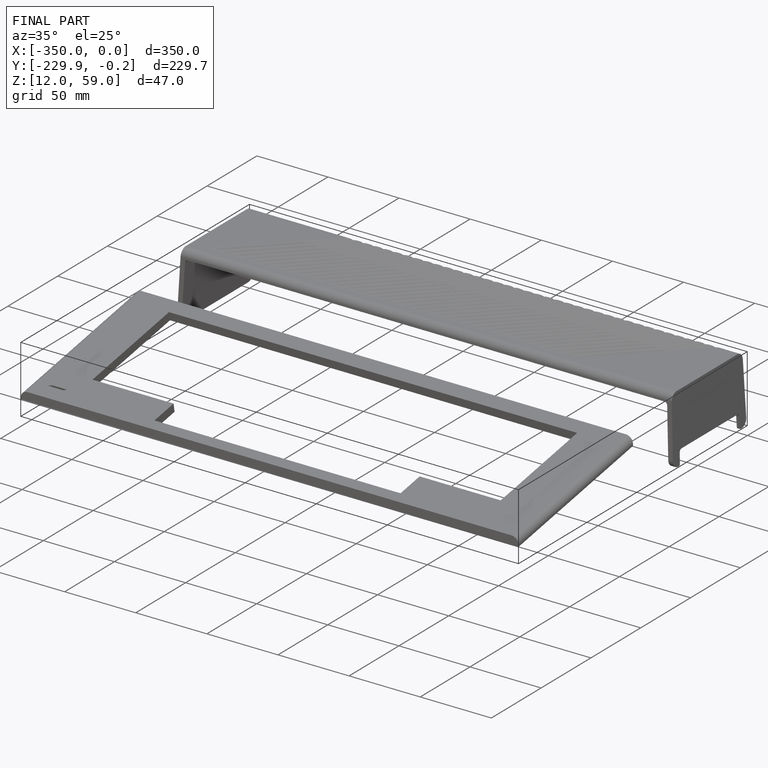
[diagram: finished part — iso view with bounding-box wireframe]
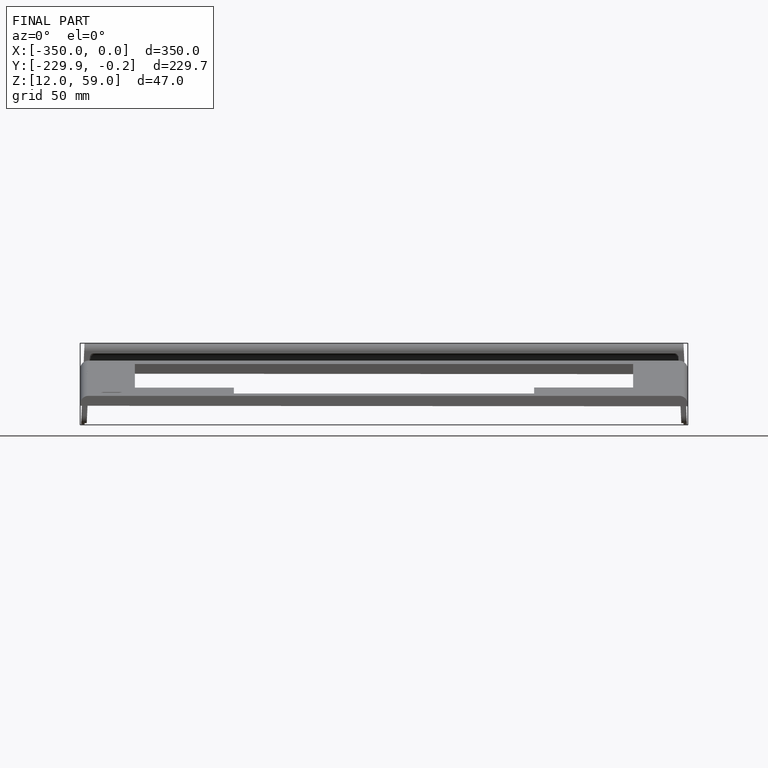
[diagram: finished part — front view with bounding-box wireframe]
